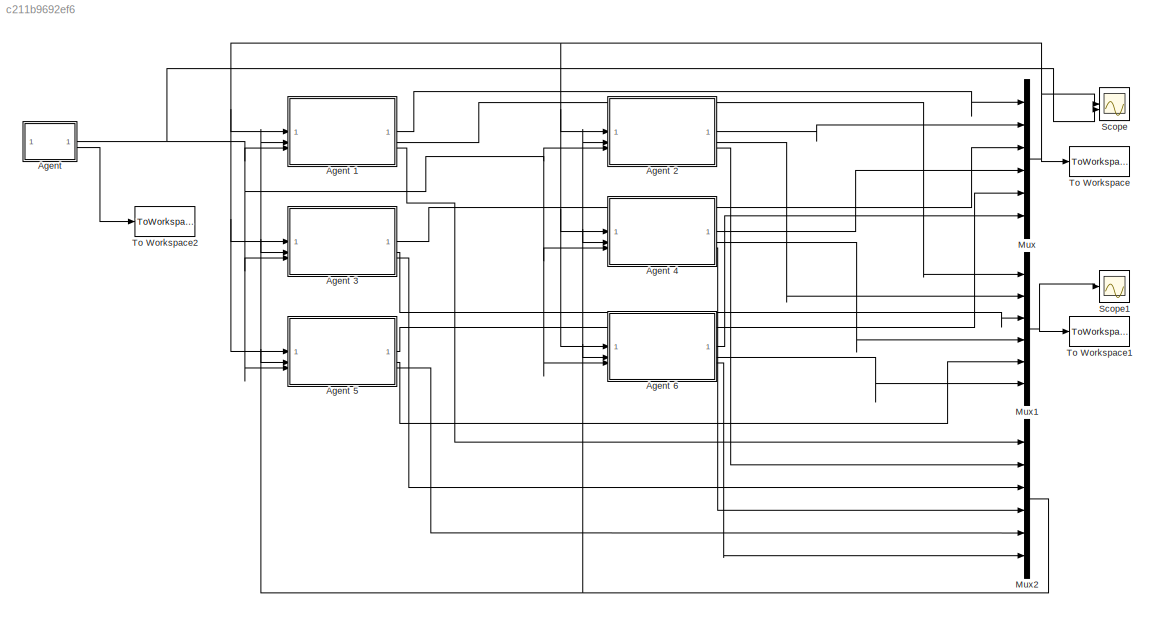
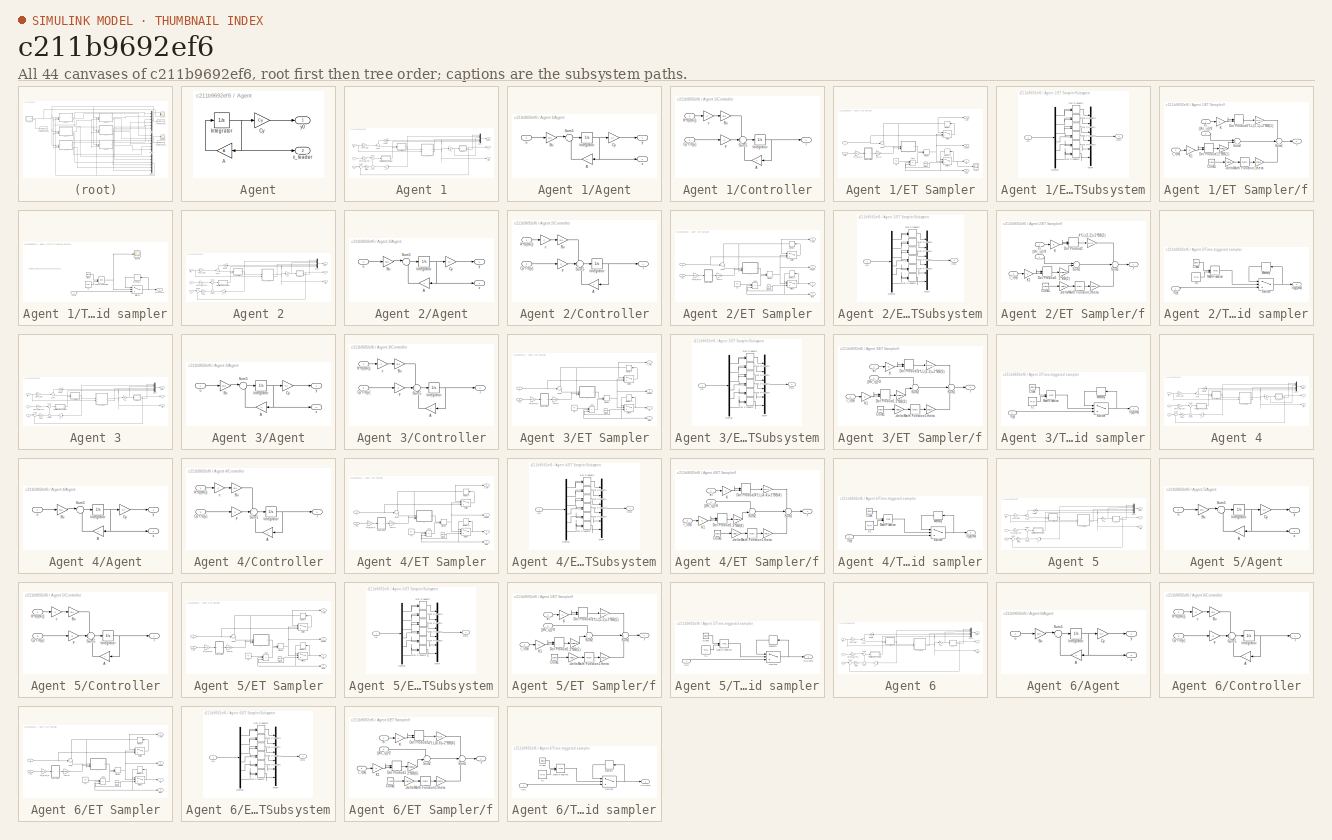
[diagram: thumbnail index - all 44 canvases of the model, root first then tree order]
MODEL slx_c211b9692ef6
KIND model
CONFIG AbsTol = auto
CONFIG EnableMultiTasking = on
CONFIG FixedStep = 0.0001
CONFIG MaxStep = auto
CONFIG MinStep = auto
CONFIG RelTol = 1e-3
CONFIG SampleTimeConstraint = Unconstrained
CONFIG SolverName = ode4
CONFIG StartTime = 0.0
CONFIG StopTime = 30
BLOCK [SubSystem] Agent
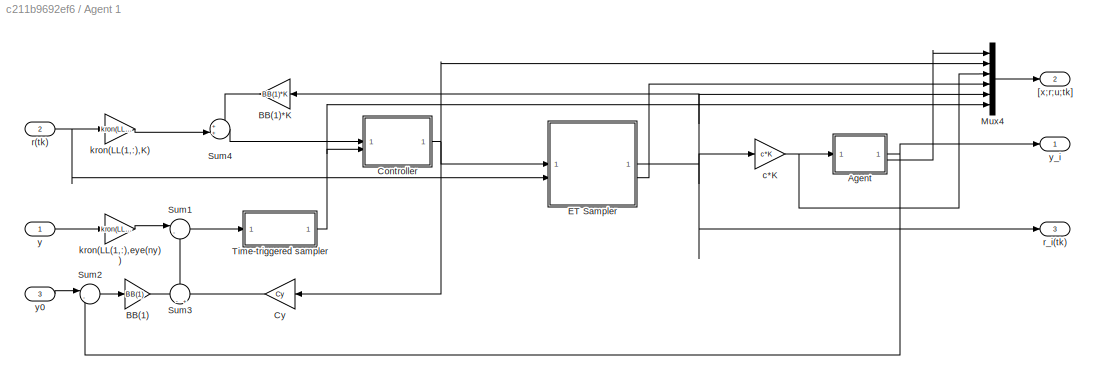
BLOCK [SubSystem] Agent 1
BLOCK [SubSystem] Agent 1/Agent
BLOCK [Gain] Agent 1/Agent/A
  Gain = A
  Multiplication = Matrix(K*u)
BLOCK [Gain] Agent 1/Agent/Bu
  Gain = Bu
  Multiplication = Matrix(K*u)
BLOCK [Gain] Agent 1/Agent/Cy
  Gain = Cy
  Multiplication = Matrix(K*u)
BLOCK [Integrator] Agent 1/Agent/Integrator
  ContinuousStateAttributes = 'x1'
  InitialCondition = x0(1:nx)
BLOCK [Sum] Agent 1/Agent/Sum5
  Inputs = |++
BLOCK [Inport] Agent 1/Agent/u
BLOCK [Outport] Agent 1/Agent/x
  Port = 2
BLOCK [Outport] Agent 1/Agent/y
BLOCK [Gain] Agent 1/BB(1)
  Gain = BB(1)
  Multiplication = Matrix(K*u)
BLOCK [Gain] Agent 1/BB(1)*K
  Gain = BB(1)*K
  Multiplication = Matrix(K*u)
BLOCK [SubSystem] Agent 1/Controller
BLOCK [Gain] Agent 1/Controller/A
  Gain = A
  Multiplication = Matrix(K*u)
BLOCK [Gain] Agent 1/Controller/Bu
  Gain = Bu
  Multiplication = Matrix(K*u)
BLOCK [Inport] Agent 1/Controller/Cy*r-\t{y}
  Port = 2
BLOCK [Gain] Agent 1/Controller/F
  Gain = F
  Multiplication = Matrix(K*u)
BLOCK [Integrator] Agent 1/Controller/Integrator
  ContinuousStateAttributes = 'r1'
  InitialCondition = zeros(nr,1)
BLOCK [Inport] Agent 1/Controller/K*\t{r(tk)}
BLOCK [Sum] Agent 1/Controller/Sum5
  Inputs = +++
BLOCK [Gain] Agent 1/Controller/c
  Gain = c
  Multiplication = Matrix(K*u)
BLOCK [Outport] Agent 1/Controller/r
BLOCK [Gain] Agent 1/Cy
  Gain = Cy
  Multiplication = Matrix(K*u)
BLOCK [SubSystem] Agent 1/ET Sampler
BLOCK [Gain] Agent 1/ET Sampler/ADJ(1,:)
  Gain = ADJ(1,:)
  Multiplication = Matrix(K*u)
BLOCK [Sum] Agent 1/ET Sampler/Add1
  IconShape = rectangular
  Inputs = ++-
BLOCK [Clock] Agent 1/ET Sampler/Clock
BLOCK [Gain] Agent 1/ET Sampler/Kri_m_Krj_1
  Gain = Kri_m_Krj_1
  Multiplication = Matrix(K*u)
BLOCK [Memory] Agent 1/ET Sampler/Memory
  InitialCondition = zeros(nr,1)
  StateName = tilde_x
BLOCK [Memory] Agent 1/ET Sampler/Memory1
  StateName = tilde_x
BLOCK [MinMax] Agent 1/ET Sampler/MinMax
  Inputs = 2
BLOCK [Scope] Agent 1/ET Sampler/Scope
  Floating = off
  NumInputPorts = 1
  ScopeSpecificationString = Simulink.scopes.TimeScopeBlockCfg('CurrentConfiguration', extmgr.ConfigurationSet(extmgr.Configuration('Core','General UI',true),extmgr.Configuration('Core','Source UI',true),extmgr.Configuration('Sources','WiredSimulink',true,'DataLoggingVariableName','ScopeData1'),extmgr.Configuration('Visuals','Time Domain',true,'SerializedDisplays',{struct('MinYLimReal','3.82548','MaxYLimReal','4.95114','YLabe...<+1450ch>
BLOCK [SubSystem] Agent 1/ET Sampler/Subsystem
BLOCK [Demux] Agent 1/ET Sampler/Subsystem/Demux
  Outputs = 6
BLOCK [DotProduct] Agent 1/ET Sampler/Subsystem/Dot Product1
  OutDataTypeStr = Inherit: Inherit via internal rule
BLOCK [DotProduct] Agent 1/ET Sampler/Subsystem/Dot Product2
  OutDataTypeStr = Inherit: Inherit via internal rule
BLOCK [DotProduct] Agent 1/ET Sampler/Subsystem/Dot Product3
  OutDataTypeStr = Inherit: Inherit via internal rule
BLOCK [DotProduct] Agent 1/ET Sampler/Subsystem/Dot Product4
  OutDataTypeStr = Inherit: Inherit via internal rule
BLOCK [DotProduct] Agent 1/ET Sampler/Subsystem/Dot Product5
  OutDataTypeStr = Inherit: Inherit via internal rule
BLOCK [DotProduct] Agent 1/ET Sampler/Subsystem/Dot Product6
  OutDataTypeStr = Inherit: Inherit via internal rule
BLOCK [Inport] Agent 1/ET Sampler/Subsystem/In1
BLOCK [Mux] Agent 1/ET Sampler/Subsystem/Mux4
  DisplayOption = bar
  Inputs = 6
BLOCK [Outport] Agent 1/ET Sampler/Subsystem/Out1
BLOCK [Sum] Agent 1/ET Sampler/Sum1
  Inputs = +-|
BLOCK [Switch] Agent 1/ET Sampler/Switch
  Criteria = u2 > Threshold
  InputSameDT = off
  SaturateOnIntegerOverflow = off
BLOCK [Switch] Agent 1/ET Sampler/Switch1
  Criteria = u2 > Threshold
  InputSameDT = off
  SaturateOnIntegerOverflow = off
BLOCK [Constant] Agent 1/ET Sampler/Th
  Value = Th
BLOCK [Outport] Agent 1/ET Sampler/Trigger
  Port = 3
BLOCK [SubSystem] Agent 1/ET Sampler/f
BLOCK [Gain] Agent 1/ET Sampler/f/-delta
  Gain = -delta
BLOCK [Gain] Agent 1/ET Sampler/f/2*BB(1)
  Gain = 2*BB(1)
  Multiplication = Matrix(K*u)
BLOCK [Gain] Agent 1/ET Sampler/f/4*LL(1,1)+2*BB(1)
  Gain = 4*LL(1,1)+2*BB(1)
  Multiplication = Matrix(K*u)
BLOCK [Clock] Agent 1/ET Sampler/f/Clock1
BLOCK [DotProduct] Agent 1/ET Sampler/f/Dot Product1
  OutDataTypeStr = Inherit: Inherit via internal rule
BLOCK [DotProduct] Agent 1/ET Sampler/f/Dot Product2
  OutDataTypeStr = Inherit: Inherit via internal rule
BLOCK [Gain] Agent 1/ET Sampler/f/K
  Gain = K
  Multiplication = Matrix(K*u)
BLOCK [Gain] Agent 1/ET Sampler/f/K1
  Gain = K
  Multiplication = Matrix(K*u)
BLOCK [Math] Agent 1/ET Sampler/f/Math Function1
  SignedPower = on
BLOCK [Sum] Agent 1/ET Sampler/f/Sum1
  Inputs = -++
BLOCK [Sum] Agent 1/ET Sampler/f/Sum2
  Inputs = +|+
BLOCK [Inport] Agent 1/ET Sampler/f/ei
BLOCK [Outport] Agent 1/ET Sampler/f/f
BLOCK [Inport] Agent 1/ET Sampler/f/r_i(tk)
  Port = 3
BLOCK [Gain] Agent 1/ET Sampler/f/theta
  Gain = theta
BLOCK [Inport] Agent 1/ET Sampler/f/||Kr_ij||^2
  Port = 2
BLOCK [Inport] Agent 1/ET Sampler/r
BLOCK [Inport] Agent 1/ET Sampler/r(tk)
  Port = 2
BLOCK [Outport] Agent 1/ET Sampler/r_i(tk)
BLOCK [Outport] Agent 1/ET Sampler/tk
  Port = 2
BLOCK [Outport] Agent 1/ET Sampler/tkm1
  Port = 4
BLOCK [Mux] Agent 1/Mux4
  DisplayOption = bar
  Inputs = 6
BLOCK [Sum] Agent 1/Sum1
  Inputs = |-+
BLOCK [Sum] Agent 1/Sum2
  Inputs = |-+
BLOCK [Sum] Agent 1/Sum3
  Inputs = -|+
  NameLocation = right
BLOCK [Sum] Agent 1/Sum4
  Inputs = ++|
BLOCK [SubSystem] Agent 1/Time-triggered sampler
BLOCK [Clock] Agent 1/Time-triggered sampler/Clock
BLOCK [Math] Agent 1/Time-triggered sampler/Math Function
  Operator = mod
BLOCK [Memory] Agent 1/Time-triggered sampler/Memory
  InitialCondition = ty0_1
  StateName = tilde_x
BLOCK [Scope] Agent 1/Time-triggered sampler/Scope
  Floating = off
  NumInputPorts = 1
  ScopeSpecificationString = Simulink.scopes.TimeScopeBlockCfg('CurrentConfiguration', extmgr.ConfigurationSet(extmgr.Configuration('Core','General UI',true),extmgr.Configuration('Core','Source UI',true),extmgr.Configuration('Sources','WiredSimulink',true,'DataLoggingVariableName','ScopeData4'),extmgr.Configuration('Visuals','Time Domain',true,'SerializedDisplays',{struct('MinYLimReal','-1.00000','MaxYLimReal','1.00000','YLab...<+1471ch>
BLOCK [Switch] Agent 1/Time-triggered sampler/Switch
  Criteria = u2 > Threshold
  InputSameDT = off
  SaturateOnIntegerOverflow = off
BLOCK [Constant] Agent 1/Time-triggered sampler/Tc
  Value = Tc(1)
BLOCK [Inport] Agent 1/Time-triggered sampler/\t{y}
BLOCK [Outport] Agent 1/Time-triggered sampler/\t{y}(ctk)
BLOCK [Outport] Agent 1/[x;r;u;tk]
  Port = 2
BLOCK [Gain] Agent 1/c*K
  Gain = c*K
  Multiplication = Matrix(K*u)
BLOCK [Gain] Agent 1/kron(LL(1,:),K)
  Gain = kron(LL(1,:),K)
  Multiplication = Matrix(K*u)
BLOCK [Gain] Agent 1/kron(LL(1,:),eye(ny))
  Gain = kron(LL(1,:),eye(ny))
  Multiplication = Matrix(K*u)
BLOCK [Inport] Agent 1/r(tk)
  Port = 2
BLOCK [Outport] Agent 1/r_i(tk)
  Port = 3
BLOCK [Inport] Agent 1/y
BLOCK [Inport] Agent 1/y0
  Port = 3
BLOCK [Outport] Agent 1/y_i
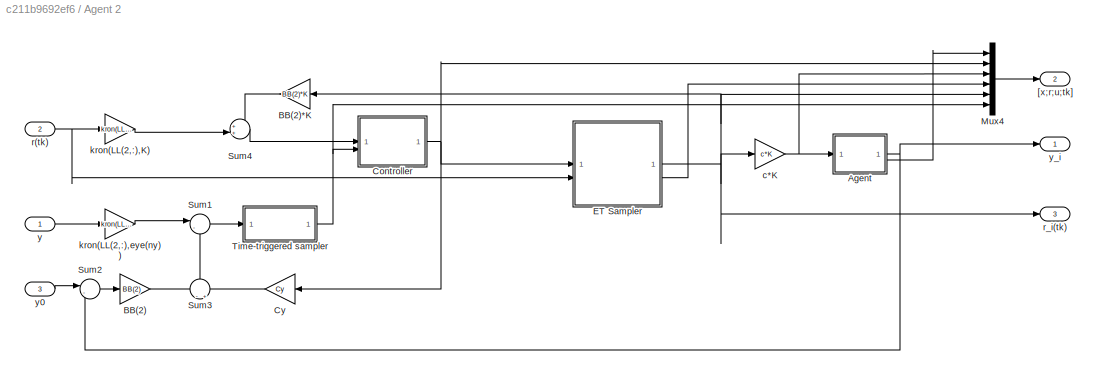
BLOCK [SubSystem] Agent 2
BLOCK [SubSystem] Agent 2/Agent
BLOCK [Gain] Agent 2/Agent/A
  Gain = A
  Multiplication = Matrix(K*u)
BLOCK [Gain] Agent 2/Agent/Bu
  Gain = Bu
  Multiplication = Matrix(K*u)
BLOCK [Gain] Agent 2/Agent/Cy
  Gain = Cy
  Multiplication = Matrix(K*u)
BLOCK [Integrator] Agent 2/Agent/Integrator
  ContinuousStateAttributes = 'x1'
  InitialCondition = x0(nx+1:2*nx)
BLOCK [Sum] Agent 2/Agent/Sum5
  Inputs = |++
BLOCK [Inport] Agent 2/Agent/u
BLOCK [Outport] Agent 2/Agent/x
  Port = 2
BLOCK [Outport] Agent 2/Agent/y
BLOCK [Gain] Agent 2/BB(2)
  Gain = BB(2)
  Multiplication = Matrix(K*u)
BLOCK [Gain] Agent 2/BB(2)*K
  Gain = BB(2)*K
  Multiplication = Matrix(K*u)
BLOCK [SubSystem] Agent 2/Controller
BLOCK [Gain] Agent 2/Controller/A
  Gain = A
  Multiplication = Matrix(K*u)
BLOCK [Gain] Agent 2/Controller/Bu
  Gain = Bu
  Multiplication = Matrix(K*u)
BLOCK [Inport] Agent 2/Controller/Cy*r-\t{y}
  Port = 2
BLOCK [Gain] Agent 2/Controller/F
  Gain = F
  Multiplication = Matrix(K*u)
BLOCK [Integrator] Agent 2/Controller/Integrator
  ContinuousStateAttributes = 'r1'
  InitialCondition = zeros(nr,1)
BLOCK [Inport] Agent 2/Controller/K*\t{r(tk)}
BLOCK [Sum] Agent 2/Controller/Sum5
  Inputs = +++
BLOCK [Gain] Agent 2/Controller/c
  Gain = c
  Multiplication = Matrix(K*u)
BLOCK [Outport] Agent 2/Controller/r
BLOCK [Gain] Agent 2/Cy
  Gain = Cy
  Multiplication = Matrix(K*u)
BLOCK [SubSystem] Agent 2/ET Sampler
BLOCK [Gain] Agent 2/ET Sampler/ADJ(2,:)
  Gain = ADJ(2,:)
  Multiplication = Matrix(K*u)
BLOCK [Sum] Agent 2/ET Sampler/Add1
  IconShape = rectangular
  Inputs = ++-
BLOCK [Clock] Agent 2/ET Sampler/Clock1
BLOCK [Gain] Agent 2/ET Sampler/Kri_m_Krj_2
  Gain = Kri_m_Krj_2
  Multiplication = Matrix(K*u)
BLOCK [Memory] Agent 2/ET Sampler/Memory
  InitialCondition = zeros(nr,1)
  StateName = tilde_x
BLOCK [Memory] Agent 2/ET Sampler/Memory1
  StateName = tilde_x
BLOCK [MinMax] Agent 2/ET Sampler/MinMax
  Inputs = 2
BLOCK [SubSystem] Agent 2/ET Sampler/Subsystem
BLOCK [Demux] Agent 2/ET Sampler/Subsystem/Demux
  Outputs = 6
BLOCK [DotProduct] Agent 2/ET Sampler/Subsystem/Dot Product1
  OutDataTypeStr = Inherit: Inherit via internal rule
BLOCK [DotProduct] Agent 2/ET Sampler/Subsystem/Dot Product2
  OutDataTypeStr = Inherit: Inherit via internal rule
BLOCK [DotProduct] Agent 2/ET Sampler/Subsystem/Dot Product3
  OutDataTypeStr = Inherit: Inherit via internal rule
BLOCK [DotProduct] Agent 2/ET Sampler/Subsystem/Dot Product4
  OutDataTypeStr = Inherit: Inherit via internal rule
BLOCK [DotProduct] Agent 2/ET Sampler/Subsystem/Dot Product5
  OutDataTypeStr = Inherit: Inherit via internal rule
BLOCK [DotProduct] Agent 2/ET Sampler/Subsystem/Dot Product6
  OutDataTypeStr = Inherit: Inherit via internal rule
BLOCK [Inport] Agent 2/ET Sampler/Subsystem/In1
BLOCK [Mux] Agent 2/ET Sampler/Subsystem/Mux4
  DisplayOption = bar
  Inputs = 6
BLOCK [Outport] Agent 2/ET Sampler/Subsystem/Out1
BLOCK [Sum] Agent 2/ET Sampler/Sum1
  Inputs = +-|
BLOCK [Switch] Agent 2/ET Sampler/Switch
  Criteria = u2 > Threshold
  InputSameDT = off
  SaturateOnIntegerOverflow = off
BLOCK [Switch] Agent 2/ET Sampler/Switch1
  Criteria = u2 > Threshold
  InputSameDT = off
  SaturateOnIntegerOverflow = off
BLOCK [Constant] Agent 2/ET Sampler/Th
  Value = Th
BLOCK [Outport] Agent 2/ET Sampler/Trigger
  Port = 3
BLOCK [SubSystem] Agent 2/ET Sampler/f
BLOCK [Gain] Agent 2/ET Sampler/f/-delta
  Gain = -delta
BLOCK [Gain] Agent 2/ET Sampler/f/2*BB(2)
  Gain = 2*BB(2)
  Multiplication = Matrix(K*u)
BLOCK [Gain] Agent 2/ET Sampler/f/4*LL(2,2)+2*BB(2)
  Gain = 4*LL(2,2)+2*BB(2)
  Multiplication = Matrix(K*u)
BLOCK [Clock] Agent 2/ET Sampler/f/Clock1
BLOCK [DotProduct] Agent 2/ET Sampler/f/Dot Product1
  OutDataTypeStr = Inherit: Inherit via internal rule
BLOCK [DotProduct] Agent 2/ET Sampler/f/Dot Product2
  OutDataTypeStr = Inherit: Inherit via internal rule
BLOCK [Gain] Agent 2/ET Sampler/f/K
  Gain = K
  Multiplication = Matrix(K*u)
BLOCK [Gain] Agent 2/ET Sampler/f/K1
  Gain = K
  Multiplication = Matrix(K*u)
BLOCK [Math] Agent 2/ET Sampler/f/Math Function1
  SignedPower = on
BLOCK [Sum] Agent 2/ET Sampler/f/Sum1
  Inputs = -++
BLOCK [Sum] Agent 2/ET Sampler/f/Sum2
  Inputs = +|+
BLOCK [Inport] Agent 2/ET Sampler/f/ei
BLOCK [Outport] Agent 2/ET Sampler/f/f
BLOCK [Inport] Agent 2/ET Sampler/f/r_i(tk)
  Port = 3
BLOCK [Gain] Agent 2/ET Sampler/f/theta
  Gain = theta
BLOCK [Inport] Agent 2/ET Sampler/f/||Kr_ij||^2
  Port = 2
BLOCK [Inport] Agent 2/ET Sampler/r
BLOCK [Inport] Agent 2/ET Sampler/r(tk)
  Port = 2
BLOCK [Outport] Agent 2/ET Sampler/r_i(tk)
BLOCK [Outport] Agent 2/ET Sampler/tk
  Port = 2
BLOCK [Outport] Agent 2/ET Sampler/tkm1
  Port = 4
BLOCK [Mux] Agent 2/Mux4
  DisplayOption = bar
  Inputs = 6
BLOCK [Sum] Agent 2/Sum1
  Inputs = |-+
BLOCK [Sum] Agent 2/Sum2
  Inputs = |-+
BLOCK [Sum] Agent 2/Sum3
  Inputs = -|+
  NameLocation = right
BLOCK [Sum] Agent 2/Sum4
  Inputs = ++|
BLOCK [SubSystem] Agent 2/Time-triggered sampler
BLOCK [Clock] Agent 2/Time-triggered sampler/Clock
BLOCK [Math] Agent 2/Time-triggered sampler/Math Function
  Operator = mod
BLOCK [Memory] Agent 2/Time-triggered sampler/Memory
  InitialCondition = ty0_2
  StateName = tilde_x
BLOCK [Switch] Agent 2/Time-triggered sampler/Switch
  Criteria = u2 > Threshold
  InputSameDT = off
  SaturateOnIntegerOverflow = off
BLOCK [Constant] Agent 2/Time-triggered sampler/Tc
  Value = Tc(2)
BLOCK [Inport] Agent 2/Time-triggered sampler/\t{y}
BLOCK [Outport] Agent 2/Time-triggered sampler/\t{y}(ctk)
BLOCK [Outport] Agent 2/[x;r;u;tk]
  Port = 2
BLOCK [Gain] Agent 2/c*K
  Gain = c*K
  Multiplication = Matrix(K*u)
BLOCK [Gain] Agent 2/kron(LL(2,:),K)
  Gain = kron(LL(2,:),K)
  Multiplication = Matrix(K*u)
BLOCK [Gain] Agent 2/kron(LL(2,:),eye(ny))
  Gain = kron(LL(2,:),eye(ny))
  Multiplication = Matrix(K*u)
BLOCK [Inport] Agent 2/r(tk)
  Port = 2
BLOCK [Outport] Agent 2/r_i(tk)
  Port = 3
BLOCK [Inport] Agent 2/y
BLOCK [Inport] Agent 2/y0
  Port = 3
BLOCK [Outport] Agent 2/y_i
BLOCK [SubSystem] Agent 3
BLOCK [SubSystem] Agent 3/Agent
BLOCK [Gain] Agent 3/Agent/A
  Gain = A
  Multiplication = Matrix(K*u)
BLOCK [Gain] Agent 3/Agent/Bu
  Gain = Bu
  Multiplication = Matrix(K*u)
BLOCK [Gain] Agent 3/Agent/Cy
  Gain = Cy
  Multiplication = Matrix(K*u)
BLOCK [Integrator] Agent 3/Agent/Integrator
  ContinuousStateAttributes = 'x1'
  InitialCondition = x0(2*nx+1:3*nx)
BLOCK [Sum] Agent 3/Agent/Sum5
  Inputs = |++
BLOCK [Inport] Agent 3/Agent/u
BLOCK [Outport] Agent 3/Agent/x
  Port = 2
BLOCK [Outport] Agent 3/Agent/y
BLOCK [Gain] Agent 3/BB(3)
  Gain = BB(3)
  Multiplication = Matrix(K*u)
BLOCK [Gain] Agent 3/BB(3)*K
  Gain = BB(3)*K
  Multiplication = Matrix(K*u)
BLOCK [SubSystem] Agent 3/Controller
BLOCK [Gain] Agent 3/Controller/A
  Gain = A
  Multiplication = Matrix(K*u)
BLOCK [Gain] Agent 3/Controller/Bu
  Gain = Bu
  Multiplication = Matrix(K*u)
BLOCK [Inport] Agent 3/Controller/Cy*r-\t{y}
  Port = 2
BLOCK [Gain] Agent 3/Controller/F
  Gain = F
  Multiplication = Matrix(K*u)
BLOCK [Integrator] Agent 3/Controller/Integrator
  ContinuousStateAttributes = 'r1'
  InitialCondition = zeros(nr,1)
BLOCK [Inport] Agent 3/Controller/K*\t{r(tk)}
BLOCK [Sum] Agent 3/Controller/Sum5
  Inputs = +++
BLOCK [Gain] Agent 3/Controller/c
  Gain = c
  Multiplication = Matrix(K*u)
BLOCK [Outport] Agent 3/Controller/r
BLOCK [Gain] Agent 3/Cy
  Gain = Cy
  Multiplication = Matrix(K*u)
BLOCK [SubSystem] Agent 3/ET Sampler
BLOCK [Gain] Agent 3/ET Sampler/ADJ(3,:)
  Gain = ADJ(3,:)
  Multiplication = Matrix(K*u)
BLOCK [Sum] Agent 3/ET Sampler/Add1
  IconShape = rectangular
  Inputs = ++-
BLOCK [Clock] Agent 3/ET Sampler/Clock
BLOCK [Gain] Agent 3/ET Sampler/Kri_m_Krj_3
  Gain = Kri_m_Krj_3
  Multiplication = Matrix(K*u)
BLOCK [Memory] Agent 3/ET Sampler/Memory
  InitialCondition = zeros(nr,1)
  StateName = tilde_x
BLOCK [Memory] Agent 3/ET Sampler/Memory1
  StateName = tilde_x
BLOCK [MinMax] Agent 3/ET Sampler/MinMax
  Inputs = 2
BLOCK [SubSystem] Agent 3/ET Sampler/Subsystem
BLOCK [Demux] Agent 3/ET Sampler/Subsystem/Demux
  Outputs = 6
BLOCK [DotProduct] Agent 3/ET Sampler/Subsystem/Dot Product1
  OutDataTypeStr = Inherit: Inherit via internal rule
BLOCK [DotProduct] Agent 3/ET Sampler/Subsystem/Dot Product2
  OutDataTypeStr = Inherit: Inherit via internal rule
BLOCK [DotProduct] Agent 3/ET Sampler/Subsystem/Dot Product3
  OutDataTypeStr = Inherit: Inherit via internal rule
BLOCK [DotProduct] Agent 3/ET Sampler/Subsystem/Dot Product4
  OutDataTypeStr = Inherit: Inherit via internal rule
BLOCK [DotProduct] Agent 3/ET Sampler/Subsystem/Dot Product5
  OutDataTypeStr = Inherit: Inherit via internal rule
BLOCK [DotProduct] Agent 3/ET Sampler/Subsystem/Dot Product6
  OutDataTypeStr = Inherit: Inherit via internal rule
BLOCK [Inport] Agent 3/ET Sampler/Subsystem/In1
BLOCK [Mux] Agent 3/ET Sampler/Subsystem/Mux4
  DisplayOption = bar
  Inputs = 6
BLOCK [Outport] Agent 3/ET Sampler/Subsystem/Out1
BLOCK [Sum] Agent 3/ET Sampler/Sum1
  Inputs = +-|
BLOCK [Switch] Agent 3/ET Sampler/Switch
  Criteria = u2 > Threshold
  InputSameDT = off
  SaturateOnIntegerOverflow = off
BLOCK [Switch] Agent 3/ET Sampler/Switch1
  Criteria = u2 > Threshold
  InputSameDT = off
  SaturateOnIntegerOverflow = off
BLOCK [Constant] Agent 3/ET Sampler/Th
  Value = Th
BLOCK [Outport] Agent 3/ET Sampler/Trigger
  Port = 3
BLOCK [SubSystem] Agent 3/ET Sampler/f
BLOCK [Gain] Agent 3/ET Sampler/f/-delta
  Gain = -delta
BLOCK [Gain] Agent 3/ET Sampler/f/2*BB(3)
  Gain = 2*BB(3)
  Multiplication = Matrix(K*u)
BLOCK [Gain] Agent 3/ET Sampler/f/4*LL(3,3)+2*BB(3)
  Gain = 4*LL(3,3)+2*BB(3)
  Multiplication = Matrix(K*u)
BLOCK [Clock] Agent 3/ET Sampler/f/Clock1
BLOCK [DotProduct] Agent 3/ET Sampler/f/Dot Product1
  OutDataTypeStr = Inherit: Inherit via internal rule
BLOCK [DotProduct] Agent 3/ET Sampler/f/Dot Product2
  OutDataTypeStr = Inherit: Inherit via internal rule
BLOCK [Gain] Agent 3/ET Sampler/f/K
  Gain = K
  Multiplication = Matrix(K*u)
BLOCK [Gain] Agent 3/ET Sampler/f/K1
  Gain = K
  Multiplication = Matrix(K*u)
BLOCK [Math] Agent 3/ET Sampler/f/Math Function1
  SignedPower = on
BLOCK [Sum] Agent 3/ET Sampler/f/Sum1
  Inputs = -++
BLOCK [Sum] Agent 3/ET Sampler/f/Sum2
  Inputs = +|+
BLOCK [Inport] Agent 3/ET Sampler/f/ei
BLOCK [Outport] Agent 3/ET Sampler/f/f
BLOCK [Inport] Agent 3/ET Sampler/f/r_i(tk)
  Port = 3
BLOCK [Gain] Agent 3/ET Sampler/f/theta
  Gain = theta
BLOCK [Inport] Agent 3/ET Sampler/f/||Kr_ij||^2
  Port = 2
BLOCK [Inport] Agent 3/ET Sampler/r
BLOCK [Inport] Agent 3/ET Sampler/r(tk)
  Port = 2
BLOCK [Outport] Agent 3/ET Sampler/r_i(tk)
BLOCK [Outport] Agent 3/ET Sampler/tk
  Port = 2
BLOCK [Outport] Agent 3/ET Sampler/tkm1
  Port = 4
BLOCK [Mux] Agent 3/Mux4
  DisplayOption = bar
  Inputs = 6
BLOCK [Sum] Agent 3/Sum1
  Inputs = |-+
BLOCK [Sum] Agent 3/Sum2
  Inputs = |-+
BLOCK [Sum] Agent 3/Sum3
  Inputs = -|+
  NameLocation = right
BLOCK [Sum] Agent 3/Sum4
  Inputs = ++|
BLOCK [SubSystem] Agent 3/Time-triggered sampler
BLOCK [Clock] Agent 3/Time-triggered sampler/Clock
BLOCK [Math] Agent 3/Time-triggered sampler/Math Function
  Operator = mod
BLOCK [Memory] Agent 3/Time-triggered sampler/Memory
  InitialCondition = ty0_3
  StateName = tilde_x
BLOCK [Switch] Agent 3/Time-triggered sampler/Switch
  Criteria = u2 > Threshold
  InputSameDT = off
  SaturateOnIntegerOverflow = off
BLOCK [Constant] Agent 3/Time-triggered sampler/Tc
  Value = Tc(3)
BLOCK [Inport] Agent 3/Time-triggered sampler/\t{y}
BLOCK [Outport] Agent 3/Time-triggered sampler/\t{y}(ctk)
BLOCK [Outport] Agent 3/[x;r;u;tk]
  Port = 2
BLOCK [Gain] Agent 3/c*K
  Gain = c*K
  Multiplication = Matrix(K*u)
BLOCK [Gain] Agent 3/kron(LL(3,:),K)
  Gain = kron(LL(3,:),K)
  Multiplication = Matrix(K*u)
BLOCK [Gain] Agent 3/kron(LL(3,:),eye(ny))
  Gain = kron(LL(3,:),eye(ny))
  Multiplication = Matrix(K*u)
BLOCK [Inport] Agent 3/r(tk)
  Port = 2
BLOCK [Outport] Agent 3/r_i(tk)
  Port = 3
BLOCK [Inport] Agent 3/y
BLOCK [Inport] Agent 3/y0
  Port = 3
BLOCK [Outport] Agent 3/y_i
BLOCK [SubSystem] Agent 4
BLOCK [SubSystem] Agent 4/Agent
BLOCK [Gain] Agent 4/Agent/A
  Gain = A
  Multiplication = Matrix(K*u)
BLOCK [Gain] Agent 4/Agent/Bu
  Gain = Bu
  Multiplication = Matrix(K*u)
BLOCK [Gain] Agent 4/Agent/Cy
  Gain = Cy
  Multiplication = Matrix(K*u)
BLOCK [Integrator] Agent 4/Agent/Integrator
  ContinuousStateAttributes = 'x1'
  InitialCondition = x0(3*nx+1:4*nx)
BLOCK [Sum] Agent 4/Agent/Sum5
  Inputs = |++
BLOCK [Inport] Agent 4/Agent/u
BLOCK [Outport] Agent 4/Agent/x
  Port = 2
BLOCK [Outport] Agent 4/Agent/y
BLOCK [Gain] Agent 4/BB(4)
  Gain = BB(4)
  Multiplication = Matrix(K*u)
BLOCK [Gain] Agent 4/BB(4)*K
  Gain = BB(4)*K
  Multiplication = Matrix(K*u)
BLOCK [SubSystem] Agent 4/Controller
BLOCK [Gain] Agent 4/Controller/A
  Gain = A
  Multiplication = Matrix(K*u)
BLOCK [Gain] Agent 4/Controller/Bu
  Gain = Bu
  Multiplication = Matrix(K*u)
BLOCK [Inport] Agent 4/Controller/Cy*r-\t{y}
  Port = 2
BLOCK [Gain] Agent 4/Controller/F
  Gain = F
  Multiplication = Matrix(K*u)
BLOCK [Integrator] Agent 4/Controller/Integrator
  ContinuousStateAttributes = 'r1'
  InitialCondition = zeros(nr,1)
BLOCK [Inport] Agent 4/Controller/K*\t{r(tk)}
BLOCK [Sum] Agent 4/Controller/Sum5
  Inputs = +++
BLOCK [Gain] Agent 4/Controller/c
  Gain = c
  Multiplication = Matrix(K*u)
BLOCK [Outport] Agent 4/Controller/r
BLOCK [Gain] Agent 4/Cy
  Gain = Cy
  Multiplication = Matrix(K*u)
BLOCK [SubSystem] Agent 4/ET Sampler
BLOCK [Gain] Agent 4/ET Sampler/ADJ(4,:)
  Gain = ADJ(4,:)
  Multiplication = Matrix(K*u)
BLOCK [Sum] Agent 4/ET Sampler/Add1
  IconShape = rectangular
  Inputs = ++-
BLOCK [Clock] Agent 4/ET Sampler/Clock
BLOCK [Gain] Agent 4/ET Sampler/Kri_m_Krj_4
  Gain = Kri_m_Krj_4
  Multiplication = Matrix(K*u)
BLOCK [Memory] Agent 4/ET Sampler/Memory
  InitialCondition = zeros(nr,1)
  StateName = tilde_x
BLOCK [Memory] Agent 4/ET Sampler/Memory1
  StateName = tilde_x
BLOCK [MinMax] Agent 4/ET Sampler/MinMax
  Inputs = 2
BLOCK [SubSystem] Agent 4/ET Sampler/Subsystem
BLOCK [Demux] Agent 4/ET Sampler/Subsystem/Demux
  Outputs = 6
BLOCK [DotProduct] Agent 4/ET Sampler/Subsystem/Dot Product1
  OutDataTypeStr = Inherit: Inherit via internal rule
BLOCK [DotProduct] Agent 4/ET Sampler/Subsystem/Dot Product2
  OutDataTypeStr = Inherit: Inherit via internal rule
BLOCK [DotProduct] Agent 4/ET Sampler/Subsystem/Dot Product3
  OutDataTypeStr = Inherit: Inherit via internal rule
BLOCK [DotProduct] Agent 4/ET Sampler/Subsystem/Dot Product4
  OutDataTypeStr = Inherit: Inherit via internal rule
BLOCK [DotProduct] Agent 4/ET Sampler/Subsystem/Dot Product5
  OutDataTypeStr = Inherit: Inherit via internal rule
BLOCK [DotProduct] Agent 4/ET Sampler/Subsystem/Dot Product6
  OutDataTypeStr = Inherit: Inherit via internal rule
BLOCK [Inport] Agent 4/ET Sampler/Subsystem/In1
BLOCK [Mux] Agent 4/ET Sampler/Subsystem/Mux4
  DisplayOption = bar
  Inputs = 6
BLOCK [Outport] Agent 4/ET Sampler/Subsystem/Out1
BLOCK [Sum] Agent 4/ET Sampler/Sum1
  Inputs = +-|
BLOCK [Switch] Agent 4/ET Sampler/Switch
  Criteria = u2 > Threshold
  InputSameDT = off
  SaturateOnIntegerOverflow = off
BLOCK [Switch] Agent 4/ET Sampler/Switch1
  Criteria = u2 > Threshold
  InputSameDT = off
  SaturateOnIntegerOverflow = off
BLOCK [Constant] Agent 4/ET Sampler/Th
  Value = Th
BLOCK [Outport] Agent 4/ET Sampler/Trigger
  Port = 3
BLOCK [SubSystem] Agent 4/ET Sampler/f
BLOCK [Gain] Agent 4/ET Sampler/f/-delta
  Gain = -delta
BLOCK [Gain] Agent 4/ET Sampler/f/2*BB(4)
  Gain = 2*BB(4)
  Multiplication = Matrix(K*u)
BLOCK [Gain] Agent 4/ET Sampler/f/4*LL(4,4)+2*BB(4)
  Gain = 4*LL(4,4)+2*BB(4)
  Multiplication = Matrix(K*u)
BLOCK [Clock] Agent 4/ET Sampler/f/Clock1
BLOCK [DotProduct] Agent 4/ET Sampler/f/Dot Product1
  OutDataTypeStr = Inherit: Inherit via internal rule
BLOCK [DotProduct] Agent 4/ET Sampler/f/Dot Product2
  OutDataTypeStr = Inherit: Inherit via internal rule
BLOCK [Gain] Agent 4/ET Sampler/f/K
  Gain = K
  Multiplication = Matrix(K*u)
BLOCK [Gain] Agent 4/ET Sampler/f/K1
  Gain = K
  Multiplication = Matrix(K*u)
BLOCK [Math] Agent 4/ET Sampler/f/Math Function1
  SignedPower = on
BLOCK [Sum] Agent 4/ET Sampler/f/Sum1
  Inputs = -++
BLOCK [Sum] Agent 4/ET Sampler/f/Sum2
  Inputs = +|+
BLOCK [Inport] Agent 4/ET Sampler/f/ei
BLOCK [Outport] Agent 4/ET Sampler/f/f
BLOCK [Inport] Agent 4/ET Sampler/f/r_i(tk)
  Port = 3
BLOCK [Gain] Agent 4/ET Sampler/f/theta
  Gain = theta
BLOCK [Inport] Agent 4/ET Sampler/f/||Kr_ij||^2
  Port = 2
BLOCK [Inport] Agent 4/ET Sampler/r
BLOCK [Inport] Agent 4/ET Sampler/r(tk)
  Port = 2
BLOCK [Outport] Agent 4/ET Sampler/r_i(tk)
BLOCK [Outport] Agent 4/ET Sampler/tk
  Port = 2
BLOCK [Outport] Agent 4/ET Sampler/tkm1
  Port = 4
BLOCK [Mux] Agent 4/Mux4
  DisplayOption = bar
  Inputs = 6
BLOCK [Sum] Agent 4/Sum1
  Inputs = |-+
BLOCK [Sum] Agent 4/Sum2
  Inputs = |-+
BLOCK [Sum] Agent 4/Sum3
  Inputs = -|+
  NameLocation = right
BLOCK [Sum] Agent 4/Sum4
  Inputs = ++|
BLOCK [SubSystem] Agent 4/Time-triggered sampler
BLOCK [Clock] Agent 4/Time-triggered sampler/Clock
BLOCK [Math] Agent 4/Time-triggered sampler/Math Function
  Operator = mod
BLOCK [Memory] Agent 4/Time-triggered sampler/Memory
  InitialCondition = ty0_4
  StateName = tilde_x
BLOCK [Switch] Agent 4/Time-triggered sampler/Switch
  Criteria = u2 > Threshold
  InputSameDT = off
  SaturateOnIntegerOverflow = off
BLOCK [Constant] Agent 4/Time-triggered sampler/Tc
  Value = Tc(4)
BLOCK [Inport] Agent 4/Time-triggered sampler/\t{y}
BLOCK [Outport] Agent 4/Time-triggered sampler/\t{y}(ctk)
BLOCK [Outport] Agent 4/[x;r;u;tk]
  Port = 2
BLOCK [Gain] Agent 4/c*K
  Gain = c*K
  Multiplication = Matrix(K*u)
BLOCK [Gain] Agent 4/kron(LL(4,:),K)
  Gain = kron(LL(4,:),K)
  Multiplication = Matrix(K*u)
BLOCK [Gain] Agent 4/kron(LL(4,:),eye(ny))
  Gain = kron(LL(4,:),eye(ny))
  Multiplication = Matrix(K*u)
BLOCK [Inport] Agent 4/r(tk)
  Port = 2
BLOCK [Outport] Agent 4/r_i(tk)
  Port = 3
BLOCK [Inport] Agent 4/y
BLOCK [Inport] Agent 4/y0
  Port = 3
BLOCK [Outport] Agent 4/y_i
BLOCK [SubSystem] Agent 5
BLOCK [SubSystem] Agent 5/Agent
BLOCK [Gain] Agent 5/Agent/A
  Gain = A
  Multiplication = Matrix(K*u)
BLOCK [Gain] Agent 5/Agent/Bu
  Gain = Bu
  Multiplication = Matrix(K*u)
BLOCK [Gain] Agent 5/Agent/Cy
  Gain = Cy
  Multiplication = Matrix(K*u)
BLOCK [Integrator] Agent 5/Agent/Integrator
  ContinuousStateAttributes = 'x1'
  InitialCondition = x0(4*nx+1:5*nx)
BLOCK [Sum] Agent 5/Agent/Sum5
  Inputs = |++
BLOCK [Inport] Agent 5/Agent/u
BLOCK [Outport] Agent 5/Agent/x
  Port = 2
BLOCK [Outport] Agent 5/Agent/y
BLOCK [Gain] Agent 5/BB(5)
  Gain = BB(5)
  Multiplication = Matrix(K*u)
BLOCK [Gain] Agent 5/BB(5)*K
  Gain = BB(5)*K
  Multiplication = Matrix(K*u)
BLOCK [SubSystem] Agent 5/Controller
BLOCK [Gain] Agent 5/Controller/A
  Gain = A
  Multiplication = Matrix(K*u)
BLOCK [Gain] Agent 5/Controller/Bu
  Gain = Bu
  Multiplication = Matrix(K*u)
BLOCK [Inport] Agent 5/Controller/Cy*r-\t{y}
  Port = 2
BLOCK [Gain] Agent 5/Controller/F
  Gain = F
  Multiplication = Matrix(K*u)
BLOCK [Integrator] Agent 5/Controller/Integrator
  ContinuousStateAttributes = 'r1'
  InitialCondition = zeros(nr,1)
BLOCK [Inport] Agent 5/Controller/K*\t{r(tk)}
BLOCK [Sum] Agent 5/Controller/Sum5
  Inputs = +++
BLOCK [Gain] Agent 5/Controller/c
  Gain = c
  Multiplication = Matrix(K*u)
BLOCK [Outport] Agent 5/Controller/r
BLOCK [Gain] Agent 5/Cy
  Gain = Cy
  Multiplication = Matrix(K*u)
BLOCK [SubSystem] Agent 5/ET Sampler
BLOCK [Gain] Agent 5/ET Sampler/ADJ(5,:)
  Gain = ADJ(5,:)
  Multiplication = Matrix(K*u)
BLOCK [Sum] Agent 5/ET Sampler/Add1
  IconShape = rectangular
  Inputs = ++-
BLOCK [Clock] Agent 5/ET Sampler/Clock
BLOCK [Gain] Agent 5/ET Sampler/Kri_m_Krj_5
  Gain = Kri_m_Krj_5
  Multiplication = Matrix(K*u)
BLOCK [Memory] Agent 5/ET Sampler/Memory
  InitialCondition = zeros(nr,1)
  StateName = tilde_x
BLOCK [Memory] Agent 5/ET Sampler/Memory1
  StateName = tilde_x
BLOCK [MinMax] Agent 5/ET Sampler/MinMax
  Inputs = 2
BLOCK [SubSystem] Agent 5/ET Sampler/Subsystem
BLOCK [Demux] Agent 5/ET Sampler/Subsystem/Demux
  Outputs = 6
BLOCK [DotProduct] Agent 5/ET Sampler/Subsystem/Dot Product1
  OutDataTypeStr = Inherit: Inherit via internal rule
BLOCK [DotProduct] Agent 5/ET Sampler/Subsystem/Dot Product2
  OutDataTypeStr = Inherit: Inherit via internal rule
BLOCK [DotProduct] Agent 5/ET Sampler/Subsystem/Dot Product3
  OutDataTypeStr = Inherit: Inherit via internal rule
BLOCK [DotProduct] Agent 5/ET Sampler/Subsystem/Dot Product4
  OutDataTypeStr = Inherit: Inherit via internal rule
BLOCK [DotProduct] Agent 5/ET Sampler/Subsystem/Dot Product5
  OutDataTypeStr = Inherit: Inherit via internal rule
BLOCK [DotProduct] Agent 5/ET Sampler/Subsystem/Dot Product6
  OutDataTypeStr = Inherit: Inherit via internal rule
BLOCK [Inport] Agent 5/ET Sampler/Subsystem/In1
BLOCK [Mux] Agent 5/ET Sampler/Subsystem/Mux4
  DisplayOption = bar
  Inputs = 6
BLOCK [Outport] Agent 5/ET Sampler/Subsystem/Out1
BLOCK [Sum] Agent 5/ET Sampler/Sum1
  Inputs = +-|
BLOCK [Switch] Agent 5/ET Sampler/Switch
  Criteria = u2 > Threshold
  InputSameDT = off
  SaturateOnIntegerOverflow = off
BLOCK [Switch] Agent 5/ET Sampler/Switch1
  Criteria = u2 > Threshold
  InputSameDT = off
  SaturateOnIntegerOverflow = off
BLOCK [Constant] Agent 5/ET Sampler/Th
  Value = Th
BLOCK [Outport] Agent 5/ET Sampler/Trigger
  Port = 3
BLOCK [SubSystem] Agent 5/ET Sampler/f
BLOCK [Gain] Agent 5/ET Sampler/f/-delta
  Gain = -delta
BLOCK [Gain] Agent 5/ET Sampler/f/2*BB(5)
  Gain = 2*BB(5)
  Multiplication = Matrix(K*u)
BLOCK [Gain] Agent 5/ET Sampler/f/4*LL(5,5)+2*BB(5)
  Gain = 4*LL(5,5)+2*BB(5)
  Multiplication = Matrix(K*u)
BLOCK [Clock] Agent 5/ET Sampler/f/Clock1
BLOCK [DotProduct] Agent 5/ET Sampler/f/Dot Product1
  OutDataTypeStr = Inherit: Inherit via internal rule
BLOCK [DotProduct] Agent 5/ET Sampler/f/Dot Product2
  OutDataTypeStr = Inherit: Inherit via internal rule
BLOCK [Gain] Agent 5/ET Sampler/f/K
  Gain = K
  Multiplication = Matrix(K*u)
BLOCK [Gain] Agent 5/ET Sampler/f/K1
  Gain = K
  Multiplication = Matrix(K*u)
BLOCK [Math] Agent 5/ET Sampler/f/Math Function1
  SignedPower = on
BLOCK [Sum] Agent 5/ET Sampler/f/Sum1
  Inputs = -++
BLOCK [Sum] Agent 5/ET Sampler/f/Sum2
  Inputs = +|+
BLOCK [Inport] Agent 5/ET Sampler/f/ei
BLOCK [Outport] Agent 5/ET Sampler/f/f
BLOCK [Inport] Agent 5/ET Sampler/f/r_i(tk)
  Port = 3
BLOCK [Gain] Agent 5/ET Sampler/f/theta
  Gain = theta
BLOCK [Inport] Agent 5/ET Sampler/f/||Kr_ij||^2
  Port = 2
BLOCK [Inport] Agent 5/ET Sampler/r
BLOCK [Inport] Agent 5/ET Sampler/r(tk)
  Port = 2
BLOCK [Outport] Agent 5/ET Sampler/r_i(tk)
BLOCK [Outport] Agent 5/ET Sampler/tk
  Port = 2
BLOCK [Outport] Agent 5/ET Sampler/tkm1
  Port = 4
BLOCK [Mux] Agent 5/Mux4
  DisplayOption = bar
  Inputs = 6
BLOCK [Sum] Agent 5/Sum1
  Inputs = |-+
BLOCK [Sum] Agent 5/Sum2
  Inputs = |-+
BLOCK [Sum] Agent 5/Sum3
  Inputs = -|+
  NameLocation = right
BLOCK [Sum] Agent 5/Sum4
  Inputs = ++|
BLOCK [SubSystem] Agent 5/Time-triggered sampler
BLOCK [Clock] Agent 5/Time-triggered sampler/Clock
BLOCK [Math] Agent 5/Time-triggered sampler/Math Function
  Operator = mod
BLOCK [Memory] Agent 5/Time-triggered sampler/Memory
  InitialCondition = ty0_5
  StateName = tilde_x
BLOCK [Switch] Agent 5/Time-triggered sampler/Switch
  Criteria = u2 > Threshold
  InputSameDT = off
  SaturateOnIntegerOverflow = off
BLOCK [Constant] Agent 5/Time-triggered sampler/Tc
  Value = Tc(5)
BLOCK [Inport] Agent 5/Time-triggered sampler/\t{y}
BLOCK [Outport] Agent 5/Time-triggered sampler/\t{y}(ctk)
BLOCK [Outport] Agent 5/[x;r;u;tk]
  Port = 2
BLOCK [Gain] Agent 5/c*K
  Gain = c*K
  Multiplication = Matrix(K*u)
BLOCK [Gain] Agent 5/kron(LL(5,:),K)
  Gain = kron(LL(5,:),K)
  Multiplication = Matrix(K*u)
BLOCK [Gain] Agent 5/kron(LL(5,:),eye(ny))
  Gain = kron(LL(5,:),eye(ny))
  Multiplication = Matrix(K*u)
BLOCK [Inport] Agent 5/r(tk)
  Port = 2
BLOCK [Outport] Agent 5/r_i(tk)
  Port = 3
BLOCK [Inport] Agent 5/y
BLOCK [Inport] Agent 5/y0
  Port = 3
BLOCK [Outport] Agent 5/y_i
BLOCK [SubSystem] Agent 6
BLOCK [SubSystem] Agent 6/Agent
BLOCK [Gain] Agent 6/Agent/A
  Gain = A
  Multiplication = Matrix(K*u)
BLOCK [Gain] Agent 6/Agent/Bu
  Gain = Bu
  Multiplication = Matrix(K*u)
BLOCK [Gain] Agent 6/Agent/Cy
  Gain = Cy
  Multiplication = Matrix(K*u)
BLOCK [Integrator] Agent 6/Agent/Integrator
  ContinuousStateAttributes = 'x1'
  InitialCondition = x0(5*nx+1:6*nx)
BLOCK [Sum] Agent 6/Agent/Sum5
  Inputs = |++
BLOCK [Inport] Agent 6/Agent/u
BLOCK [Outport] Agent 6/Agent/x
  Port = 2
BLOCK [Outport] Agent 6/Agent/y
BLOCK [Gain] Agent 6/BB(6)
  Gain = BB(6)
  Multiplication = Matrix(K*u)
BLOCK [Gain] Agent 6/BB(6)*K
  Gain = BB(6)*K
  Multiplication = Matrix(K*u)
BLOCK [SubSystem] Agent 6/Controller
BLOCK [Gain] Agent 6/Controller/A
  Gain = A
  Multiplication = Matrix(K*u)
BLOCK [Gain] Agent 6/Controller/Bu
  Gain = Bu
  Multiplication = Matrix(K*u)
BLOCK [Inport] Agent 6/Controller/Cy*r-\t{y}
  Port = 2
BLOCK [Gain] Agent 6/Controller/F
  Gain = F
  Multiplication = Matrix(K*u)
BLOCK [Integrator] Agent 6/Controller/Integrator
  ContinuousStateAttributes = 'r1'
  InitialCondition = zeros(nr,1)
BLOCK [Inport] Agent 6/Controller/K*\t{r(tk)}
BLOCK [Sum] Agent 6/Controller/Sum5
  Inputs = +++
BLOCK [Gain] Agent 6/Controller/c
  Gain = c
  Multiplication = Matrix(K*u)
BLOCK [Outport] Agent 6/Controller/r
BLOCK [Gain] Agent 6/Cy
  Gain = Cy
  Multiplication = Matrix(K*u)
BLOCK [SubSystem] Agent 6/ET Sampler
BLOCK [Gain] Agent 6/ET Sampler/ADJ(6,:)
  Gain = ADJ(6,:)
  Multiplication = Matrix(K*u)
BLOCK [Sum] Agent 6/ET Sampler/Add1
  IconShape = rectangular
  Inputs = ++-
BLOCK [Clock] Agent 6/ET Sampler/Clock
BLOCK [Gain] Agent 6/ET Sampler/Kri_m_Krj_6
  Gain = Kri_m_Krj_6
  Multiplication = Matrix(K*u)
BLOCK [Memory] Agent 6/ET Sampler/Memory
  InitialCondition = zeros(nr,1)
  StateName = tilde_x
BLOCK [Memory] Agent 6/ET Sampler/Memory1
  StateName = tilde_x
BLOCK [MinMax] Agent 6/ET Sampler/MinMax
  Inputs = 2
BLOCK [SubSystem] Agent 6/ET Sampler/Subsystem
BLOCK [Demux] Agent 6/ET Sampler/Subsystem/Demux
  Outputs = 6
BLOCK [DotProduct] Agent 6/ET Sampler/Subsystem/Dot Product1
  OutDataTypeStr = Inherit: Inherit via internal rule
BLOCK [DotProduct] Agent 6/ET Sampler/Subsystem/Dot Product2
  OutDataTypeStr = Inherit: Inherit via internal rule
BLOCK [DotProduct] Agent 6/ET Sampler/Subsystem/Dot Product3
  OutDataTypeStr = Inherit: Inherit via internal rule
BLOCK [DotProduct] Agent 6/ET Sampler/Subsystem/Dot Product4
  OutDataTypeStr = Inherit: Inherit via internal rule
BLOCK [DotProduct] Agent 6/ET Sampler/Subsystem/Dot Product5
  OutDataTypeStr = Inherit: Inherit via internal rule
BLOCK [DotProduct] Agent 6/ET Sampler/Subsystem/Dot Product6
  OutDataTypeStr = Inherit: Inherit via internal rule
BLOCK [Inport] Agent 6/ET Sampler/Subsystem/In1
BLOCK [Mux] Agent 6/ET Sampler/Subsystem/Mux4
  DisplayOption = bar
  Inputs = 6
BLOCK [Outport] Agent 6/ET Sampler/Subsystem/Out1
BLOCK [Sum] Agent 6/ET Sampler/Sum1
  Inputs = +-|
BLOCK [Switch] Agent 6/ET Sampler/Switch
  Criteria = u2 > Threshold
  InputSameDT = off
  SaturateOnIntegerOverflow = off
BLOCK [Switch] Agent 6/ET Sampler/Switch1
  Criteria = u2 > Threshold
  InputSameDT = off
  SaturateOnIntegerOverflow = off
BLOCK [Constant] Agent 6/ET Sampler/Th
  Value = Th
BLOCK [Outport] Agent 6/ET Sampler/Trigger
  Port = 3
BLOCK [SubSystem] Agent 6/ET Sampler/f
BLOCK [Gain] Agent 6/ET Sampler/f/-delta
  Gain = -delta
BLOCK [Gain] Agent 6/ET Sampler/f/2*BB(6)
  Gain = 2*BB(6)
  Multiplication = Matrix(K*u)
BLOCK [Gain] Agent 6/ET Sampler/f/4*LL(6,6)+2*BB(6)
  Gain = 4*LL(6,6)+2*BB(6)
  Multiplication = Matrix(K*u)
BLOCK [Clock] Agent 6/ET Sampler/f/Clock1
BLOCK [DotProduct] Agent 6/ET Sampler/f/Dot Product1
  OutDataTypeStr = Inherit: Inherit via internal rule
BLOCK [DotProduct] Agent 6/ET Sampler/f/Dot Product2
  OutDataTypeStr = Inherit: Inherit via internal rule
BLOCK [Gain] Agent 6/ET Sampler/f/K
  Gain = K
  Multiplication = Matrix(K*u)
BLOCK [Gain] Agent 6/ET Sampler/f/K1
  Gain = K
  Multiplication = Matrix(K*u)
BLOCK [Math] Agent 6/ET Sampler/f/Math Function1
  SignedPower = on
BLOCK [Sum] Agent 6/ET Sampler/f/Sum1
  Inputs = -++
BLOCK [Sum] Agent 6/ET Sampler/f/Sum2
  Inputs = +|+
BLOCK [Inport] Agent 6/ET Sampler/f/ei
BLOCK [Outport] Agent 6/ET Sampler/f/f
BLOCK [Inport] Agent 6/ET Sampler/f/r_i(tk)
  Port = 3
BLOCK [Gain] Agent 6/ET Sampler/f/theta
  Gain = theta
BLOCK [Inport] Agent 6/ET Sampler/f/||Kr_ij||^2
  Port = 2
BLOCK [Inport] Agent 6/ET Sampler/r
BLOCK [Inport] Agent 6/ET Sampler/r(tk)
  Port = 2
BLOCK [Outport] Agent 6/ET Sampler/r_i(tk)
BLOCK [Outport] Agent 6/ET Sampler/tk
  Port = 2
BLOCK [Outport] Agent 6/ET Sampler/tkm1
  Port = 4
BLOCK [Mux] Agent 6/Mux4
  DisplayOption = bar
  Inputs = 6
BLOCK [Sum] Agent 6/Sum1
  Inputs = |-+
BLOCK [Sum] Agent 6/Sum2
  Inputs = |-+
BLOCK [Sum] Agent 6/Sum3
  Inputs = -|+
  NameLocation = right
BLOCK [Sum] Agent 6/Sum4
  Inputs = ++|
BLOCK [SubSystem] Agent 6/Time-triggered sampler
BLOCK [Clock] Agent 6/Time-triggered sampler/Clock
BLOCK [Math] Agent 6/Time-triggered sampler/Math Function
  Operator = mod
BLOCK [Memory] Agent 6/Time-triggered sampler/Memory
  InitialCondition = ty0_6
  StateName = tilde_x
BLOCK [Switch] Agent 6/Time-triggered sampler/Switch
  Criteria = u2 > Threshold
  InputSameDT = off
  SaturateOnIntegerOverflow = off
BLOCK [Constant] Agent 6/Time-triggered sampler/Tc
  Value = Tc(6)
BLOCK [Inport] Agent 6/Time-triggered sampler/\t{y}
BLOCK [Outport] Agent 6/Time-triggered sampler/\t{y}(ctk)
BLOCK [Outport] Agent 6/[x;r;u;tk]
  Port = 2
BLOCK [Gain] Agent 6/c*K
  Gain = c*K
  Multiplication = Matrix(K*u)
BLOCK [Gain] Agent 6/kron(LL(6,:),K)
  Gain = kron(LL(6,:),K)
  Multiplication = Matrix(K*u)
BLOCK [Gain] Agent 6/kron(LL(6,:),eye(ny))
  Gain = kron(LL(6,:),eye(ny))
  Multiplication = Matrix(K*u)
BLOCK [Inport] Agent 6/r(tk)
  Port = 2
BLOCK [Outport] Agent 6/r_i(tk)
  Port = 3
BLOCK [Inport] Agent 6/y
BLOCK [Inport] Agent 6/y0
  Port = 3
BLOCK [Outport] Agent 6/y_i
BLOCK [Gain] Agent/A
  Gain = A
  Multiplication = Matrix(K*u)
BLOCK [Gain] Agent/Cy
  Gain = Cy
  Multiplication = Matrix(K*u)
BLOCK [Integrator] Agent/Integrator
  ContinuousStateAttributes = 'x1'
  InitialCondition = x0_leader
BLOCK [Outport] Agent/x_leader
  Port = 2
BLOCK [Outport] Agent/y0
BLOCK [Mux] Mux
  DisplayOption = bar
  Inputs = 6
BLOCK [Mux] Mux1
  DisplayOption = bar
  Inputs = 6
BLOCK [Mux] Mux2
  DisplayOption = bar
  Inputs = 6
BLOCK [Scope] Scope
  Floating = off
  NumInputPorts = 2
  ScopeSpecificationString = Simulink.scopes.TimeScopeBlockCfg('CurrentConfiguration', extmgr.ConfigurationSet(extmgr.Configuration('Core','General UI',true),extmgr.Configuration('Core','Source UI',true),extmgr.Configuration('Sources','WiredSimulink',true),extmgr.Configuration('Visuals','Time Domain',true,'SerializedDisplays',{struct('MinYLimReal','-42.96194','MaxYLimReal','47.74383','YLabelReal','','MinYLimMag','0.00000','Ma...<+1638ch>
BLOCK [Scope] Scope1
  Floating = off
  NumInputPorts = 1
  ScopeSpecificationString = Simulink.scopes.TimeScopeBlockCfg('CurrentConfiguration', extmgr.ConfigurationSet(extmgr.Configuration('Core','General UI',true),extmgr.Configuration('Core','Source UI',true),extmgr.Configuration('Sources','WiredSimulink',true,'DataLoggingVariableName','ScopeData1'),extmgr.Configuration('Visuals','Time Domain',true,'SerializedDisplays',{struct('MinYLimReal','-10878342.73026','MaxYLimReal','1108279...<+4386ch>
BLOCK [ToWorkspace] To Workspace
  FixptAsFi = on
  MaxDataPoints = inf
  SampleTime = -1
  SaveFormat = Timeseries
  VariableName = y
BLOCK [ToWorkspace] To Workspace1
  FixptAsFi = on
  MaxDataPoints = inf
  SampleTime = -1
  SaveFormat = Timeseries
  VariableName = x_r_u_tk
BLOCK [ToWorkspace] To Workspace2
  FixptAsFi = on
  MaxDataPoints = inf
  SampleTime = -1
  SaveFormat = Timeseries
  VariableName = x_leader
ANNOTATION Agent 1/Time-triggered sampler: mod函数需要Tc的精度与仿真步长的精度一致，否则不能正确运算
LINE Agent 1/Agent/A:1 -> Agent 1/Agent/Sum5:2
LINE Agent 1/Agent/Bu:1 -> Agent 1/Agent/Sum5:1
LINE Agent 1/Agent/Cy:1 -> Agent 1/Agent/y:1
NET Agent 1/Agent/Integrator:1 -> Agent 1/Agent/A:1, Agent 1/Agent/Cy:1, Agent 1/Agent/x:1
LINE Agent 1/Agent/Sum5:1 -> Agent 1/Agent/Integrator:1
LINE Agent 1/Agent/u:1 -> Agent 1/Agent/Bu:1
NET Agent 1/Agent:1 -> Agent 1/Sum2:2, Agent 1/y_i:1
LINE Agent 1/Agent:2 -> Agent 1/Mux4:1
LINE Agent 1/BB(1)*K:1 -> Agent 1/Sum4:1
LINE Agent 1/BB(1):1 -> Agent 1/Sum3:1
LINE Agent 1/Controller/A:1 -> Agent 1/Controller/Sum5:3
LINE Agent 1/Controller/Bu:1 -> Agent 1/Controller/Sum5:1
LINE Agent 1/Controller/Cy*r-\t{y}:1 -> Agent 1/Controller/F:1
LINE Agent 1/Controller/F:1 -> Agent 1/Controller/Sum5:2
NET Agent 1/Controller/Integrator:1 -> Agent 1/Controller/A:1, Agent 1/Controller/r:1
LINE Agent 1/Controller/K*\t{r(tk)}:1 -> Agent 1/Controller/c:1
LINE Agent 1/Controller/Sum5:1 -> Agent 1/Controller/Integrator:1
LINE Agent 1/Controller/c:1 -> Agent 1/Controller/Bu:1
NET Agent 1/Controller:1 -> Agent 1/Cy:1, Agent 1/ET Sampler:1, Agent 1/Mux4:2
LINE Agent 1/Cy:1 -> Agent 1/Sum3:2
LINE Agent 1/ET Sampler/ADJ(1,:):1 -> Agent 1/ET Sampler/f:2
LINE Agent 1/ET Sampler/Add1:1 -> Agent 1/ET Sampler/MinMax:2
NET Agent 1/ET Sampler/Clock:1 -> Agent 1/ET Sampler/Add1:3, Agent 1/ET Sampler/Switch1:3
LINE Agent 1/ET Sampler/Kri_m_Krj_1:1 -> Agent 1/ET Sampler/Subsystem:1
NET Agent 1/ET Sampler/Memory1:1 -> Agent 1/ET Sampler/Add1:2, Agent 1/ET Sampler/Switch1:1, Agent 1/ET Sampler/tkm1:1
NET Agent 1/ET Sampler/Memory:1 -> Agent 1/ET Sampler/Sum1:1, Agent 1/ET Sampler/Switch:1, Agent 1/ET Sampler/f:3, Agent 1/ET Sampler/r_i(tk):1
NET Agent 1/ET Sampler/MinMax:1 -> Agent 1/ET Sampler/Switch1:2, Agent 1/ET Sampler/Switch:2, Agent 1/ET Sampler/Trigger:1
NET Agent 1/ET Sampler/Subsystem/Demux:1 -> Agent 1/ET Sampler/Subsystem/Dot Product2:1, Agent 1/ET Sampler/Subsystem/Dot Product2:2
NET Agent 1/ET Sampler/Subsystem/Demux:2 -> Agent 1/ET Sampler/Subsystem/Dot Product3:1, Agent 1/ET Sampler/Subsystem/Dot Product3:2
NET Agent 1/ET Sampler/Subsystem/Demux:3 -> Agent 1/ET Sampler/Subsystem/Dot Product1:1, Agent 1/ET Sampler/Subsystem/Dot Product1:2
NET Agent 1/ET Sampler/Subsystem/Demux:4 -> Agent 1/ET Sampler/Subsystem/Dot Product4:1, Agent 1/ET Sampler/Subsystem/Dot Product4:2
NET Agent 1/ET Sampler/Subsystem/Demux:5 -> Agent 1/ET Sampler/Subsystem/Dot Product6:1, Agent 1/ET Sampler/Subsystem/Dot Product6:2
NET Agent 1/ET Sampler/Subsystem/Demux:6 -> Agent 1/ET Sampler/Subsystem/Dot Product5:1, Agent 1/ET Sampler/Subsystem/Dot Product5:2
LINE Agent 1/ET Sampler/Subsystem/Dot Product1:1 -> Agent 1/ET Sampler/Subsystem/Mux4:3
LINE Agent 1/ET Sampler/Subsystem/Dot Product2:1 -> Agent 1/ET Sampler/Subsystem/Mux4:1
LINE Agent 1/ET Sampler/Subsystem/Dot Product3:1 -> Agent 1/ET Sampler/Subsystem/Mux4:2
LINE Agent 1/ET Sampler/Subsystem/Dot Product4:1 -> Agent 1/ET Sampler/Subsystem/Mux4:4
LINE Agent 1/ET Sampler/Subsystem/Dot Product5:1 -> Agent 1/ET Sampler/Subsystem/Mux4:6
LINE Agent 1/ET Sampler/Subsystem/Dot Product6:1 -> Agent 1/ET Sampler/Subsystem/Mux4:5
LINE Agent 1/ET Sampler/Subsystem/In1:1 -> Agent 1/ET Sampler/Subsystem/Demux:1
LINE Agent 1/ET Sampler/Subsystem/Mux4:1 -> Agent 1/ET Sampler/Subsystem/Out1:1
LINE Agent 1/ET Sampler/Subsystem:1 -> Agent 1/ET Sampler/ADJ(1,:):1
LINE Agent 1/ET Sampler/Sum1:1 -> Agent 1/ET Sampler/f:1
NET Agent 1/ET Sampler/Switch1:1 -> Agent 1/ET Sampler/Memory1:1, Agent 1/ET Sampler/Scope:1, Agent 1/ET Sampler/tk:1
LINE Agent 1/ET Sampler/Switch:1 -> Agent 1/ET Sampler/Memory:1
LINE Agent 1/ET Sampler/Th:1 -> Agent 1/ET Sampler/Add1:1
LINE Agent 1/ET Sampler/f/-delta:1 -> Agent 1/ET Sampler/f/Math Function1:1
LINE Agent 1/ET Sampler/f/2*BB(1):1 -> Agent 1/ET Sampler/f/Sum2:2
LINE Agent 1/ET Sampler/f/4*LL(1,1)+2*BB(1):1 -> Agent 1/ET Sampler/f/Sum1:1
LINE Agent 1/ET Sampler/f/Clock1:1 -> Agent 1/ET Sampler/f/-delta:1
LINE Agent 1/ET Sampler/f/Dot Product1:1 -> Agent 1/ET Sampler/f/2*BB(1):1
LINE Agent 1/ET Sampler/f/Dot Product2:1 -> Agent 1/ET Sampler/f/4*LL(1,1)+2*BB(1):1
NET Agent 1/ET Sampler/f/K1:1 -> Agent 1/ET Sampler/f/Dot Product1:1, Agent 1/ET Sampler/f/Dot Product1:2
NET Agent 1/ET Sampler/f/K:1 -> Agent 1/ET Sampler/f/Dot Product2:1, Agent 1/ET Sampler/f/Dot Product2:2
LINE Agent 1/ET Sampler/f/Math Function1:1 -> Agent 1/ET Sampler/f/theta:1
LINE Agent 1/ET Sampler/f/Sum1:1 -> Agent 1/ET Sampler/f/f:1
LINE Agent 1/ET Sampler/f/Sum2:1 -> Agent 1/ET Sampler/f/Sum1:2
LINE Agent 1/ET Sampler/f/ei:1 -> Agent 1/ET Sampler/f/K:1
LINE Agent 1/ET Sampler/f/r_i(tk):1 -> Agent 1/ET Sampler/f/K1:1
LINE Agent 1/ET Sampler/f/theta:1 -> Agent 1/ET Sampler/f/Sum1:3
LINE Agent 1/ET Sampler/f/||Kr_ij||^2:1 -> Agent 1/ET Sampler/f/Sum2:1
LINE Agent 1/ET Sampler/f:1 -> Agent 1/ET Sampler/MinMax:1
LINE Agent 1/ET Sampler/r(tk):1 -> Agent 1/ET Sampler/Kri_m_Krj_1:1
NET Agent 1/ET Sampler/r:1 -> Agent 1/ET Sampler/Sum1:2, Agent 1/ET Sampler/Switch:3
NET Agent 1/ET Sampler:1 -> Agent 1/BB(1)*K:1, Agent 1/Mux4:5, Agent 1/c*K:1, Agent 1/r_i(tk):1
LINE Agent 1/ET Sampler:2 -> Agent 1/Mux4:4
LINE Agent 1/Mux4:1 -> Agent 1/[x;r;u;tk]:1
LINE Agent 1/Sum1:1 -> Agent 1/Time-triggered sampler:1
LINE Agent 1/Sum2:1 -> Agent 1/BB(1):1
LINE Agent 1/Sum3:1 -> Agent 1/Sum1:2
LINE Agent 1/Sum4:1 -> Agent 1/Controller:1
LINE Agent 1/Time-triggered sampler/Clock:1 -> Agent 1/Time-triggered sampler/Math Function:1
NET Agent 1/Time-triggered sampler/Math Function:1 -> Agent 1/Time-triggered sampler/Scope:1, Agent 1/Time-triggered sampler/Switch:2
LINE Agent 1/Time-triggered sampler/Memory:1 -> Agent 1/Time-triggered sampler/Switch:1
NET Agent 1/Time-triggered sampler/Switch:1 -> Agent 1/Time-triggered sampler/Memory:1, Agent 1/Time-triggered sampler/\t{y}(ctk):1
LINE Agent 1/Time-triggered sampler/Tc:1 -> Agent 1/Time-triggered sampler/Math Function:2
LINE Agent 1/Time-triggered sampler/\t{y}:1 -> Agent 1/Time-triggered sampler/Switch:3
NET Agent 1/Time-triggered sampler:1 -> Agent 1/Controller:2, Agent 1/Mux4:6
NET Agent 1/c*K:1 -> Agent 1/Agent:1, Agent 1/Mux4:3
LINE Agent 1/kron(LL(1,:),K):1 -> Agent 1/Sum4:2
LINE Agent 1/kron(LL(1,:),eye(ny)):1 -> Agent 1/Sum1:1
NET Agent 1/r(tk):1 -> Agent 1/ET Sampler:2, Agent 1/kron(LL(1,:),K):1
LINE Agent 1/y0:1 -> Agent 1/Sum2:1
LINE Agent 1/y:1 -> Agent 1/kron(LL(1,:),eye(ny)):1
LINE Agent 1:1 -> Mux:1
LINE Agent 1:2 -> Mux1:1
LINE Agent 1:3 -> Mux2:1
LINE Agent 2/Agent/A:1 -> Agent 2/Agent/Sum5:2
LINE Agent 2/Agent/Bu:1 -> Agent 2/Agent/Sum5:1
LINE Agent 2/Agent/Cy:1 -> Agent 2/Agent/y:1
NET Agent 2/Agent/Integrator:1 -> Agent 2/Agent/A:1, Agent 2/Agent/Cy:1, Agent 2/Agent/x:1
LINE Agent 2/Agent/Sum5:1 -> Agent 2/Agent/Integrator:1
LINE Agent 2/Agent/u:1 -> Agent 2/Agent/Bu:1
NET Agent 2/Agent:1 -> Agent 2/Sum2:2, Agent 2/y_i:1
LINE Agent 2/Agent:2 -> Agent 2/Mux4:1
LINE Agent 2/BB(2)*K:1 -> Agent 2/Sum4:1
LINE Agent 2/BB(2):1 -> Agent 2/Sum3:1
LINE Agent 2/Controller/A:1 -> Agent 2/Controller/Sum5:3
LINE Agent 2/Controller/Bu:1 -> Agent 2/Controller/Sum5:1
LINE Agent 2/Controller/Cy*r-\t{y}:1 -> Agent 2/Controller/F:1
LINE Agent 2/Controller/F:1 -> Agent 2/Controller/Sum5:2
NET Agent 2/Controller/Integrator:1 -> Agent 2/Controller/A:1, Agent 2/Controller/r:1
LINE Agent 2/Controller/K*\t{r(tk)}:1 -> Agent 2/Controller/c:1
LINE Agent 2/Controller/Sum5:1 -> Agent 2/Controller/Integrator:1
LINE Agent 2/Controller/c:1 -> Agent 2/Controller/Bu:1
NET Agent 2/Controller:1 -> Agent 2/Cy:1, Agent 2/ET Sampler:1, Agent 2/Mux4:2
LINE Agent 2/Cy:1 -> Agent 2/Sum3:2
LINE Agent 2/ET Sampler/ADJ(2,:):1 -> Agent 2/ET Sampler/f:2
LINE Agent 2/ET Sampler/Add1:1 -> Agent 2/ET Sampler/MinMax:2
NET Agent 2/ET Sampler/Clock1:1 -> Agent 2/ET Sampler/Add1:3, Agent 2/ET Sampler/Switch1:3
LINE Agent 2/ET Sampler/Kri_m_Krj_2:1 -> Agent 2/ET Sampler/Subsystem:1
NET Agent 2/ET Sampler/Memory1:1 -> Agent 2/ET Sampler/Add1:2, Agent 2/ET Sampler/Switch1:1, Agent 2/ET Sampler/tkm1:1
NET Agent 2/ET Sampler/Memory:1 -> Agent 2/ET Sampler/Sum1:1, Agent 2/ET Sampler/Switch:1, Agent 2/ET Sampler/f:3, Agent 2/ET Sampler/r_i(tk):1
NET Agent 2/ET Sampler/MinMax:1 -> Agent 2/ET Sampler/Switch1:2, Agent 2/ET Sampler/Switch:2, Agent 2/ET Sampler/Trigger:1
NET Agent 2/ET Sampler/Subsystem/Demux:1 -> Agent 2/ET Sampler/Subsystem/Dot Product2:1, Agent 2/ET Sampler/Subsystem/Dot Product2:2
NET Agent 2/ET Sampler/Subsystem/Demux:2 -> Agent 2/ET Sampler/Subsystem/Dot Product3:1, Agent 2/ET Sampler/Subsystem/Dot Product3:2
NET Agent 2/ET Sampler/Subsystem/Demux:3 -> Agent 2/ET Sampler/Subsystem/Dot Product1:1, Agent 2/ET Sampler/Subsystem/Dot Product1:2
NET Agent 2/ET Sampler/Subsystem/Demux:4 -> Agent 2/ET Sampler/Subsystem/Dot Product4:1, Agent 2/ET Sampler/Subsystem/Dot Product4:2
NET Agent 2/ET Sampler/Subsystem/Demux:5 -> Agent 2/ET Sampler/Subsystem/Dot Product6:1, Agent 2/ET Sampler/Subsystem/Dot Product6:2
NET Agent 2/ET Sampler/Subsystem/Demux:6 -> Agent 2/ET Sampler/Subsystem/Dot Product5:1, Agent 2/ET Sampler/Subsystem/Dot Product5:2
LINE Agent 2/ET Sampler/Subsystem/Dot Product1:1 -> Agent 2/ET Sampler/Subsystem/Mux4:3
LINE Agent 2/ET Sampler/Subsystem/Dot Product2:1 -> Agent 2/ET Sampler/Subsystem/Mux4:1
LINE Agent 2/ET Sampler/Subsystem/Dot Product3:1 -> Agent 2/ET Sampler/Subsystem/Mux4:2
LINE Agent 2/ET Sampler/Subsystem/Dot Product4:1 -> Agent 2/ET Sampler/Subsystem/Mux4:4
LINE Agent 2/ET Sampler/Subsystem/Dot Product5:1 -> Agent 2/ET Sampler/Subsystem/Mux4:6
LINE Agent 2/ET Sampler/Subsystem/Dot Product6:1 -> Agent 2/ET Sampler/Subsystem/Mux4:5
LINE Agent 2/ET Sampler/Subsystem/In1:1 -> Agent 2/ET Sampler/Subsystem/Demux:1
LINE Agent 2/ET Sampler/Subsystem/Mux4:1 -> Agent 2/ET Sampler/Subsystem/Out1:1
LINE Agent 2/ET Sampler/Subsystem:1 -> Agent 2/ET Sampler/ADJ(2,:):1
LINE Agent 2/ET Sampler/Sum1:1 -> Agent 2/ET Sampler/f:1
NET Agent 2/ET Sampler/Switch1:1 -> Agent 2/ET Sampler/Memory1:1, Agent 2/ET Sampler/tk:1
LINE Agent 2/ET Sampler/Switch:1 -> Agent 2/ET Sampler/Memory:1
LINE Agent 2/ET Sampler/Th:1 -> Agent 2/ET Sampler/Add1:1
LINE Agent 2/ET Sampler/f/-delta:1 -> Agent 2/ET Sampler/f/Math Function1:1
LINE Agent 2/ET Sampler/f/2*BB(2):1 -> Agent 2/ET Sampler/f/Sum2:2
LINE Agent 2/ET Sampler/f/4*LL(2,2)+2*BB(2):1 -> Agent 2/ET Sampler/f/Sum1:1
LINE Agent 2/ET Sampler/f/Clock1:1 -> Agent 2/ET Sampler/f/-delta:1
LINE Agent 2/ET Sampler/f/Dot Product1:1 -> Agent 2/ET Sampler/f/2*BB(2):1
LINE Agent 2/ET Sampler/f/Dot Product2:1 -> Agent 2/ET Sampler/f/4*LL(2,2)+2*BB(2):1
NET Agent 2/ET Sampler/f/K1:1 -> Agent 2/ET Sampler/f/Dot Product1:1, Agent 2/ET Sampler/f/Dot Product1:2
NET Agent 2/ET Sampler/f/K:1 -> Agent 2/ET Sampler/f/Dot Product2:1, Agent 2/ET Sampler/f/Dot Product2:2
LINE Agent 2/ET Sampler/f/Math Function1:1 -> Agent 2/ET Sampler/f/theta:1
LINE Agent 2/ET Sampler/f/Sum1:1 -> Agent 2/ET Sampler/f/f:1
LINE Agent 2/ET Sampler/f/Sum2:1 -> Agent 2/ET Sampler/f/Sum1:2
LINE Agent 2/ET Sampler/f/ei:1 -> Agent 2/ET Sampler/f/K:1
LINE Agent 2/ET Sampler/f/r_i(tk):1 -> Agent 2/ET Sampler/f/K1:1
LINE Agent 2/ET Sampler/f/theta:1 -> Agent 2/ET Sampler/f/Sum1:3
LINE Agent 2/ET Sampler/f/||Kr_ij||^2:1 -> Agent 2/ET Sampler/f/Sum2:1
LINE Agent 2/ET Sampler/f:1 -> Agent 2/ET Sampler/MinMax:1
LINE Agent 2/ET Sampler/r(tk):1 -> Agent 2/ET Sampler/Kri_m_Krj_2:1
NET Agent 2/ET Sampler/r:1 -> Agent 2/ET Sampler/Sum1:2, Agent 2/ET Sampler/Switch:3
NET Agent 2/ET Sampler:1 -> Agent 2/BB(2)*K:1, Agent 2/Mux4:5, Agent 2/c*K:1, Agent 2/r_i(tk):1
LINE Agent 2/ET Sampler:2 -> Agent 2/Mux4:4
LINE Agent 2/Mux4:1 -> Agent 2/[x;r;u;tk]:1
LINE Agent 2/Sum1:1 -> Agent 2/Time-triggered sampler:1
LINE Agent 2/Sum2:1 -> Agent 2/BB(2):1
LINE Agent 2/Sum3:1 -> Agent 2/Sum1:2
LINE Agent 2/Sum4:1 -> Agent 2/Controller:1
LINE Agent 2/Time-triggered sampler/Clock:1 -> Agent 2/Time-triggered sampler/Math Function:1
LINE Agent 2/Time-triggered sampler/Math Function:1 -> Agent 2/Time-triggered sampler/Switch:2
LINE Agent 2/Time-triggered sampler/Memory:1 -> Agent 2/Time-triggered sampler/Switch:1
NET Agent 2/Time-triggered sampler/Switch:1 -> Agent 2/Time-triggered sampler/Memory:1, Agent 2/Time-triggered sampler/\t{y}(ctk):1
LINE Agent 2/Time-triggered sampler/Tc:1 -> Agent 2/Time-triggered sampler/Math Function:2
LINE Agent 2/Time-triggered sampler/\t{y}:1 -> Agent 2/Time-triggered sampler/Switch:3
NET Agent 2/Time-triggered sampler:1 -> Agent 2/Controller:2, Agent 2/Mux4:6
NET Agent 2/c*K:1 -> Agent 2/Agent:1, Agent 2/Mux4:3
LINE Agent 2/kron(LL(2,:),K):1 -> Agent 2/Sum4:2
LINE Agent 2/kron(LL(2,:),eye(ny)):1 -> Agent 2/Sum1:1
NET Agent 2/r(tk):1 -> Agent 2/ET Sampler:2, Agent 2/kron(LL(2,:),K):1
LINE Agent 2/y0:1 -> Agent 2/Sum2:1
LINE Agent 2/y:1 -> Agent 2/kron(LL(2,:),eye(ny)):1
LINE Agent 2:1 -> Mux:2
LINE Agent 2:2 -> Mux1:2
LINE Agent 2:3 -> Mux2:2
LINE Agent 3/Agent/A:1 -> Agent 3/Agent/Sum5:2
LINE Agent 3/Agent/Bu:1 -> Agent 3/Agent/Sum5:1
LINE Agent 3/Agent/Cy:1 -> Agent 3/Agent/y:1
NET Agent 3/Agent/Integrator:1 -> Agent 3/Agent/A:1, Agent 3/Agent/Cy:1, Agent 3/Agent/x:1
LINE Agent 3/Agent/Sum5:1 -> Agent 3/Agent/Integrator:1
LINE Agent 3/Agent/u:1 -> Agent 3/Agent/Bu:1
NET Agent 3/Agent:1 -> Agent 3/Sum2:2, Agent 3/y_i:1
LINE Agent 3/Agent:2 -> Agent 3/Mux4:1
LINE Agent 3/BB(3)*K:1 -> Agent 3/Sum4:1
LINE Agent 3/BB(3):1 -> Agent 3/Sum3:1
LINE Agent 3/Controller/A:1 -> Agent 3/Controller/Sum5:3
LINE Agent 3/Controller/Bu:1 -> Agent 3/Controller/Sum5:1
LINE Agent 3/Controller/Cy*r-\t{y}:1 -> Agent 3/Controller/F:1
LINE Agent 3/Controller/F:1 -> Agent 3/Controller/Sum5:2
NET Agent 3/Controller/Integrator:1 -> Agent 3/Controller/A:1, Agent 3/Controller/r:1
LINE Agent 3/Controller/K*\t{r(tk)}:1 -> Agent 3/Controller/c:1
LINE Agent 3/Controller/Sum5:1 -> Agent 3/Controller/Integrator:1
LINE Agent 3/Controller/c:1 -> Agent 3/Controller/Bu:1
NET Agent 3/Controller:1 -> Agent 3/Cy:1, Agent 3/ET Sampler:1, Agent 3/Mux4:2
LINE Agent 3/Cy:1 -> Agent 3/Sum3:2
LINE Agent 3/ET Sampler/ADJ(3,:):1 -> Agent 3/ET Sampler/f:2
LINE Agent 3/ET Sampler/Add1:1 -> Agent 3/ET Sampler/MinMax:2
NET Agent 3/ET Sampler/Clock:1 -> Agent 3/ET Sampler/Add1:3, Agent 3/ET Sampler/Switch1:3
LINE Agent 3/ET Sampler/Kri_m_Krj_3:1 -> Agent 3/ET Sampler/Subsystem:1
NET Agent 3/ET Sampler/Memory1:1 -> Agent 3/ET Sampler/Add1:2, Agent 3/ET Sampler/Switch1:1, Agent 3/ET Sampler/tkm1:1
NET Agent 3/ET Sampler/Memory:1 -> Agent 3/ET Sampler/Sum1:1, Agent 3/ET Sampler/Switch:1, Agent 3/ET Sampler/f:3, Agent 3/ET Sampler/r_i(tk):1
NET Agent 3/ET Sampler/MinMax:1 -> Agent 3/ET Sampler/Switch1:2, Agent 3/ET Sampler/Switch:2, Agent 3/ET Sampler/Trigger:1
NET Agent 3/ET Sampler/Subsystem/Demux:1 -> Agent 3/ET Sampler/Subsystem/Dot Product2:1, Agent 3/ET Sampler/Subsystem/Dot Product2:2
NET Agent 3/ET Sampler/Subsystem/Demux:2 -> Agent 3/ET Sampler/Subsystem/Dot Product3:1, Agent 3/ET Sampler/Subsystem/Dot Product3:2
NET Agent 3/ET Sampler/Subsystem/Demux:3 -> Agent 3/ET Sampler/Subsystem/Dot Product1:1, Agent 3/ET Sampler/Subsystem/Dot Product1:2
NET Agent 3/ET Sampler/Subsystem/Demux:4 -> Agent 3/ET Sampler/Subsystem/Dot Product4:1, Agent 3/ET Sampler/Subsystem/Dot Product4:2
NET Agent 3/ET Sampler/Subsystem/Demux:5 -> Agent 3/ET Sampler/Subsystem/Dot Product6:1, Agent 3/ET Sampler/Subsystem/Dot Product6:2
NET Agent 3/ET Sampler/Subsystem/Demux:6 -> Agent 3/ET Sampler/Subsystem/Dot Product5:1, Agent 3/ET Sampler/Subsystem/Dot Product5:2
LINE Agent 3/ET Sampler/Subsystem/Dot Product1:1 -> Agent 3/ET Sampler/Subsystem/Mux4:3
LINE Agent 3/ET Sampler/Subsystem/Dot Product2:1 -> Agent 3/ET Sampler/Subsystem/Mux4:1
LINE Agent 3/ET Sampler/Subsystem/Dot Product3:1 -> Agent 3/ET Sampler/Subsystem/Mux4:2
LINE Agent 3/ET Sampler/Subsystem/Dot Product4:1 -> Agent 3/ET Sampler/Subsystem/Mux4:4
LINE Agent 3/ET Sampler/Subsystem/Dot Product5:1 -> Agent 3/ET Sampler/Subsystem/Mux4:6
LINE Agent 3/ET Sampler/Subsystem/Dot Product6:1 -> Agent 3/ET Sampler/Subsystem/Mux4:5
LINE Agent 3/ET Sampler/Subsystem/In1:1 -> Agent 3/ET Sampler/Subsystem/Demux:1
LINE Agent 3/ET Sampler/Subsystem/Mux4:1 -> Agent 3/ET Sampler/Subsystem/Out1:1
LINE Agent 3/ET Sampler/Subsystem:1 -> Agent 3/ET Sampler/ADJ(3,:):1
LINE Agent 3/ET Sampler/Sum1:1 -> Agent 3/ET Sampler/f:1
NET Agent 3/ET Sampler/Switch1:1 -> Agent 3/ET Sampler/Memory1:1, Agent 3/ET Sampler/tk:1
LINE Agent 3/ET Sampler/Switch:1 -> Agent 3/ET Sampler/Memory:1
LINE Agent 3/ET Sampler/Th:1 -> Agent 3/ET Sampler/Add1:1
LINE Agent 3/ET Sampler/f/-delta:1 -> Agent 3/ET Sampler/f/Math Function1:1
LINE Agent 3/ET Sampler/f/2*BB(3):1 -> Agent 3/ET Sampler/f/Sum2:2
LINE Agent 3/ET Sampler/f/4*LL(3,3)+2*BB(3):1 -> Agent 3/ET Sampler/f/Sum1:1
LINE Agent 3/ET Sampler/f/Clock1:1 -> Agent 3/ET Sampler/f/-delta:1
LINE Agent 3/ET Sampler/f/Dot Product1:1 -> Agent 3/ET Sampler/f/2*BB(3):1
LINE Agent 3/ET Sampler/f/Dot Product2:1 -> Agent 3/ET Sampler/f/4*LL(3,3)+2*BB(3):1
NET Agent 3/ET Sampler/f/K1:1 -> Agent 3/ET Sampler/f/Dot Product1:1, Agent 3/ET Sampler/f/Dot Product1:2
NET Agent 3/ET Sampler/f/K:1 -> Agent 3/ET Sampler/f/Dot Product2:1, Agent 3/ET Sampler/f/Dot Product2:2
LINE Agent 3/ET Sampler/f/Math Function1:1 -> Agent 3/ET Sampler/f/theta:1
LINE Agent 3/ET Sampler/f/Sum1:1 -> Agent 3/ET Sampler/f/f:1
LINE Agent 3/ET Sampler/f/Sum2:1 -> Agent 3/ET Sampler/f/Sum1:2
LINE Agent 3/ET Sampler/f/ei:1 -> Agent 3/ET Sampler/f/K:1
LINE Agent 3/ET Sampler/f/r_i(tk):1 -> Agent 3/ET Sampler/f/K1:1
LINE Agent 3/ET Sampler/f/theta:1 -> Agent 3/ET Sampler/f/Sum1:3
LINE Agent 3/ET Sampler/f/||Kr_ij||^2:1 -> Agent 3/ET Sampler/f/Sum2:1
LINE Agent 3/ET Sampler/f:1 -> Agent 3/ET Sampler/MinMax:1
LINE Agent 3/ET Sampler/r(tk):1 -> Agent 3/ET Sampler/Kri_m_Krj_3:1
NET Agent 3/ET Sampler/r:1 -> Agent 3/ET Sampler/Sum1:2, Agent 3/ET Sampler/Switch:3
NET Agent 3/ET Sampler:1 -> Agent 3/BB(3)*K:1, Agent 3/Mux4:5, Agent 3/c*K:1, Agent 3/r_i(tk):1
LINE Agent 3/ET Sampler:2 -> Agent 3/Mux4:4
LINE Agent 3/Mux4:1 -> Agent 3/[x;r;u;tk]:1
LINE Agent 3/Sum1:1 -> Agent 3/Time-triggered sampler:1
LINE Agent 3/Sum2:1 -> Agent 3/BB(3):1
LINE Agent 3/Sum3:1 -> Agent 3/Sum1:2
LINE Agent 3/Sum4:1 -> Agent 3/Controller:1
LINE Agent 3/Time-triggered sampler/Clock:1 -> Agent 3/Time-triggered sampler/Math Function:1
LINE Agent 3/Time-triggered sampler/Math Function:1 -> Agent 3/Time-triggered sampler/Switch:2
LINE Agent 3/Time-triggered sampler/Memory:1 -> Agent 3/Time-triggered sampler/Switch:1
NET Agent 3/Time-triggered sampler/Switch:1 -> Agent 3/Time-triggered sampler/Memory:1, Agent 3/Time-triggered sampler/\t{y}(ctk):1
LINE Agent 3/Time-triggered sampler/Tc:1 -> Agent 3/Time-triggered sampler/Math Function:2
LINE Agent 3/Time-triggered sampler/\t{y}:1 -> Agent 3/Time-triggered sampler/Switch:3
NET Agent 3/Time-triggered sampler:1 -> Agent 3/Controller:2, Agent 3/Mux4:6
NET Agent 3/c*K:1 -> Agent 3/Agent:1, Agent 3/Mux4:3
LINE Agent 3/kron(LL(3,:),K):1 -> Agent 3/Sum4:2
LINE Agent 3/kron(LL(3,:),eye(ny)):1 -> Agent 3/Sum1:1
NET Agent 3/r(tk):1 -> Agent 3/ET Sampler:2, Agent 3/kron(LL(3,:),K):1
LINE Agent 3/y0:1 -> Agent 3/Sum2:1
LINE Agent 3/y:1 -> Agent 3/kron(LL(3,:),eye(ny)):1
LINE Agent 3:1 -> Mux:3
LINE Agent 3:2 -> Mux1:3
LINE Agent 3:3 -> Mux2:3
LINE Agent 4/Agent/A:1 -> Agent 4/Agent/Sum5:2
LINE Agent 4/Agent/Bu:1 -> Agent 4/Agent/Sum5:1
LINE Agent 4/Agent/Cy:1 -> Agent 4/Agent/y:1
NET Agent 4/Agent/Integrator:1 -> Agent 4/Agent/A:1, Agent 4/Agent/Cy:1, Agent 4/Agent/x:1
LINE Agent 4/Agent/Sum5:1 -> Agent 4/Agent/Integrator:1
LINE Agent 4/Agent/u:1 -> Agent 4/Agent/Bu:1
NET Agent 4/Agent:1 -> Agent 4/Sum2:2, Agent 4/y_i:1
LINE Agent 4/Agent:2 -> Agent 4/Mux4:1
LINE Agent 4/BB(4)*K:1 -> Agent 4/Sum4:1
LINE Agent 4/BB(4):1 -> Agent 4/Sum3:1
LINE Agent 4/Controller/A:1 -> Agent 4/Controller/Sum5:3
LINE Agent 4/Controller/Bu:1 -> Agent 4/Controller/Sum5:1
LINE Agent 4/Controller/Cy*r-\t{y}:1 -> Agent 4/Controller/F:1
LINE Agent 4/Controller/F:1 -> Agent 4/Controller/Sum5:2
NET Agent 4/Controller/Integrator:1 -> Agent 4/Controller/A:1, Agent 4/Controller/r:1
LINE Agent 4/Controller/K*\t{r(tk)}:1 -> Agent 4/Controller/c:1
LINE Agent 4/Controller/Sum5:1 -> Agent 4/Controller/Integrator:1
LINE Agent 4/Controller/c:1 -> Agent 4/Controller/Bu:1
NET Agent 4/Controller:1 -> Agent 4/Cy:1, Agent 4/ET Sampler:1, Agent 4/Mux4:2
LINE Agent 4/Cy:1 -> Agent 4/Sum3:2
LINE Agent 4/ET Sampler/ADJ(4,:):1 -> Agent 4/ET Sampler/f:2
LINE Agent 4/ET Sampler/Add1:1 -> Agent 4/ET Sampler/MinMax:2
NET Agent 4/ET Sampler/Clock:1 -> Agent 4/ET Sampler/Add1:3, Agent 4/ET Sampler/Switch1:3
LINE Agent 4/ET Sampler/Kri_m_Krj_4:1 -> Agent 4/ET Sampler/Subsystem:1
NET Agent 4/ET Sampler/Memory1:1 -> Agent 4/ET Sampler/Add1:2, Agent 4/ET Sampler/Switch1:1, Agent 4/ET Sampler/tkm1:1
NET Agent 4/ET Sampler/Memory:1 -> Agent 4/ET Sampler/Sum1:1, Agent 4/ET Sampler/Switch:1, Agent 4/ET Sampler/f:3, Agent 4/ET Sampler/r_i(tk):1
NET Agent 4/ET Sampler/MinMax:1 -> Agent 4/ET Sampler/Switch1:2, Agent 4/ET Sampler/Switch:2, Agent 4/ET Sampler/Trigger:1
NET Agent 4/ET Sampler/Subsystem/Demux:1 -> Agent 4/ET Sampler/Subsystem/Dot Product2:1, Agent 4/ET Sampler/Subsystem/Dot Product2:2
NET Agent 4/ET Sampler/Subsystem/Demux:2 -> Agent 4/ET Sampler/Subsystem/Dot Product3:1, Agent 4/ET Sampler/Subsystem/Dot Product3:2
NET Agent 4/ET Sampler/Subsystem/Demux:3 -> Agent 4/ET Sampler/Subsystem/Dot Product1:1, Agent 4/ET Sampler/Subsystem/Dot Product1:2
NET Agent 4/ET Sampler/Subsystem/Demux:4 -> Agent 4/ET Sampler/Subsystem/Dot Product4:1, Agent 4/ET Sampler/Subsystem/Dot Product4:2
NET Agent 4/ET Sampler/Subsystem/Demux:5 -> Agent 4/ET Sampler/Subsystem/Dot Product6:1, Agent 4/ET Sampler/Subsystem/Dot Product6:2
NET Agent 4/ET Sampler/Subsystem/Demux:6 -> Agent 4/ET Sampler/Subsystem/Dot Product5:1, Agent 4/ET Sampler/Subsystem/Dot Product5:2
LINE Agent 4/ET Sampler/Subsystem/Dot Product1:1 -> Agent 4/ET Sampler/Subsystem/Mux4:3
LINE Agent 4/ET Sampler/Subsystem/Dot Product2:1 -> Agent 4/ET Sampler/Subsystem/Mux4:1
LINE Agent 4/ET Sampler/Subsystem/Dot Product3:1 -> Agent 4/ET Sampler/Subsystem/Mux4:2
LINE Agent 4/ET Sampler/Subsystem/Dot Product4:1 -> Agent 4/ET Sampler/Subsystem/Mux4:4
LINE Agent 4/ET Sampler/Subsystem/Dot Product5:1 -> Agent 4/ET Sampler/Subsystem/Mux4:6
LINE Agent 4/ET Sampler/Subsystem/Dot Product6:1 -> Agent 4/ET Sampler/Subsystem/Mux4:5
LINE Agent 4/ET Sampler/Subsystem/In1:1 -> Agent 4/ET Sampler/Subsystem/Demux:1
LINE Agent 4/ET Sampler/Subsystem/Mux4:1 -> Agent 4/ET Sampler/Subsystem/Out1:1
LINE Agent 4/ET Sampler/Subsystem:1 -> Agent 4/ET Sampler/ADJ(4,:):1
LINE Agent 4/ET Sampler/Sum1:1 -> Agent 4/ET Sampler/f:1
NET Agent 4/ET Sampler/Switch1:1 -> Agent 4/ET Sampler/Memory1:1, Agent 4/ET Sampler/tk:1
LINE Agent 4/ET Sampler/Switch:1 -> Agent 4/ET Sampler/Memory:1
LINE Agent 4/ET Sampler/Th:1 -> Agent 4/ET Sampler/Add1:1
LINE Agent 4/ET Sampler/f/-delta:1 -> Agent 4/ET Sampler/f/Math Function1:1
LINE Agent 4/ET Sampler/f/2*BB(4):1 -> Agent 4/ET Sampler/f/Sum2:2
LINE Agent 4/ET Sampler/f/4*LL(4,4)+2*BB(4):1 -> Agent 4/ET Sampler/f/Sum1:1
LINE Agent 4/ET Sampler/f/Clock1:1 -> Agent 4/ET Sampler/f/-delta:1
LINE Agent 4/ET Sampler/f/Dot Product1:1 -> Agent 4/ET Sampler/f/2*BB(4):1
LINE Agent 4/ET Sampler/f/Dot Product2:1 -> Agent 4/ET Sampler/f/4*LL(4,4)+2*BB(4):1
NET Agent 4/ET Sampler/f/K1:1 -> Agent 4/ET Sampler/f/Dot Product1:1, Agent 4/ET Sampler/f/Dot Product1:2
NET Agent 4/ET Sampler/f/K:1 -> Agent 4/ET Sampler/f/Dot Product2:1, Agent 4/ET Sampler/f/Dot Product2:2
LINE Agent 4/ET Sampler/f/Math Function1:1 -> Agent 4/ET Sampler/f/theta:1
LINE Agent 4/ET Sampler/f/Sum1:1 -> Agent 4/ET Sampler/f/f:1
LINE Agent 4/ET Sampler/f/Sum2:1 -> Agent 4/ET Sampler/f/Sum1:2
LINE Agent 4/ET Sampler/f/ei:1 -> Agent 4/ET Sampler/f/K:1
LINE Agent 4/ET Sampler/f/r_i(tk):1 -> Agent 4/ET Sampler/f/K1:1
LINE Agent 4/ET Sampler/f/theta:1 -> Agent 4/ET Sampler/f/Sum1:3
LINE Agent 4/ET Sampler/f/||Kr_ij||^2:1 -> Agent 4/ET Sampler/f/Sum2:1
LINE Agent 4/ET Sampler/f:1 -> Agent 4/ET Sampler/MinMax:1
LINE Agent 4/ET Sampler/r(tk):1 -> Agent 4/ET Sampler/Kri_m_Krj_4:1
NET Agent 4/ET Sampler/r:1 -> Agent 4/ET Sampler/Sum1:2, Agent 4/ET Sampler/Switch:3
NET Agent 4/ET Sampler:1 -> Agent 4/BB(4)*K:1, Agent 4/Mux4:5, Agent 4/c*K:1, Agent 4/r_i(tk):1
LINE Agent 4/ET Sampler:2 -> Agent 4/Mux4:4
LINE Agent 4/Mux4:1 -> Agent 4/[x;r;u;tk]:1
LINE Agent 4/Sum1:1 -> Agent 4/Time-triggered sampler:1
LINE Agent 4/Sum2:1 -> Agent 4/BB(4):1
LINE Agent 4/Sum3:1 -> Agent 4/Sum1:2
LINE Agent 4/Sum4:1 -> Agent 4/Controller:1
LINE Agent 4/Time-triggered sampler/Clock:1 -> Agent 4/Time-triggered sampler/Math Function:1
LINE Agent 4/Time-triggered sampler/Math Function:1 -> Agent 4/Time-triggered sampler/Switch:2
LINE Agent 4/Time-triggered sampler/Memory:1 -> Agent 4/Time-triggered sampler/Switch:1
NET Agent 4/Time-triggered sampler/Switch:1 -> Agent 4/Time-triggered sampler/Memory:1, Agent 4/Time-triggered sampler/\t{y}(ctk):1
LINE Agent 4/Time-triggered sampler/Tc:1 -> Agent 4/Time-triggered sampler/Math Function:2
LINE Agent 4/Time-triggered sampler/\t{y}:1 -> Agent 4/Time-triggered sampler/Switch:3
NET Agent 4/Time-triggered sampler:1 -> Agent 4/Controller:2, Agent 4/Mux4:6
NET Agent 4/c*K:1 -> Agent 4/Agent:1, Agent 4/Mux4:3
LINE Agent 4/kron(LL(4,:),K):1 -> Agent 4/Sum4:2
LINE Agent 4/kron(LL(4,:),eye(ny)):1 -> Agent 4/Sum1:1
NET Agent 4/r(tk):1 -> Agent 4/ET Sampler:2, Agent 4/kron(LL(4,:),K):1
LINE Agent 4/y0:1 -> Agent 4/Sum2:1
LINE Agent 4/y:1 -> Agent 4/kron(LL(4,:),eye(ny)):1
LINE Agent 4:1 -> Mux:4
LINE Agent 4:2 -> Mux1:4
LINE Agent 4:3 -> Mux2:4
LINE Agent 5/Agent/A:1 -> Agent 5/Agent/Sum5:2
LINE Agent 5/Agent/Bu:1 -> Agent 5/Agent/Sum5:1
LINE Agent 5/Agent/Cy:1 -> Agent 5/Agent/y:1
NET Agent 5/Agent/Integrator:1 -> Agent 5/Agent/A:1, Agent 5/Agent/Cy:1, Agent 5/Agent/x:1
LINE Agent 5/Agent/Sum5:1 -> Agent 5/Agent/Integrator:1
LINE Agent 5/Agent/u:1 -> Agent 5/Agent/Bu:1
NET Agent 5/Agent:1 -> Agent 5/Sum2:2, Agent 5/y_i:1
LINE Agent 5/Agent:2 -> Agent 5/Mux4:1
LINE Agent 5/BB(5)*K:1 -> Agent 5/Sum4:1
LINE Agent 5/BB(5):1 -> Agent 5/Sum3:1
LINE Agent 5/Controller/A:1 -> Agent 5/Controller/Sum5:3
LINE Agent 5/Controller/Bu:1 -> Agent 5/Controller/Sum5:1
LINE Agent 5/Controller/Cy*r-\t{y}:1 -> Agent 5/Controller/F:1
LINE Agent 5/Controller/F:1 -> Agent 5/Controller/Sum5:2
NET Agent 5/Controller/Integrator:1 -> Agent 5/Controller/A:1, Agent 5/Controller/r:1
LINE Agent 5/Controller/K*\t{r(tk)}:1 -> Agent 5/Controller/c:1
LINE Agent 5/Controller/Sum5:1 -> Agent 5/Controller/Integrator:1
LINE Agent 5/Controller/c:1 -> Agent 5/Controller/Bu:1
NET Agent 5/Controller:1 -> Agent 5/Cy:1, Agent 5/ET Sampler:1, Agent 5/Mux4:2
LINE Agent 5/Cy:1 -> Agent 5/Sum3:2
LINE Agent 5/ET Sampler/ADJ(5,:):1 -> Agent 5/ET Sampler/f:2
LINE Agent 5/ET Sampler/Add1:1 -> Agent 5/ET Sampler/MinMax:2
NET Agent 5/ET Sampler/Clock:1 -> Agent 5/ET Sampler/Add1:3, Agent 5/ET Sampler/Switch1:3
LINE Agent 5/ET Sampler/Kri_m_Krj_5:1 -> Agent 5/ET Sampler/Subsystem:1
NET Agent 5/ET Sampler/Memory1:1 -> Agent 5/ET Sampler/Add1:2, Agent 5/ET Sampler/Switch1:1, Agent 5/ET Sampler/tkm1:1
NET Agent 5/ET Sampler/Memory:1 -> Agent 5/ET Sampler/Sum1:1, Agent 5/ET Sampler/Switch:1, Agent 5/ET Sampler/f:3, Agent 5/ET Sampler/r_i(tk):1
NET Agent 5/ET Sampler/MinMax:1 -> Agent 5/ET Sampler/Switch1:2, Agent 5/ET Sampler/Switch:2, Agent 5/ET Sampler/Trigger:1
NET Agent 5/ET Sampler/Subsystem/Demux:1 -> Agent 5/ET Sampler/Subsystem/Dot Product2:1, Agent 5/ET Sampler/Subsystem/Dot Product2:2
NET Agent 5/ET Sampler/Subsystem/Demux:2 -> Agent 5/ET Sampler/Subsystem/Dot Product3:1, Agent 5/ET Sampler/Subsystem/Dot Product3:2
NET Agent 5/ET Sampler/Subsystem/Demux:3 -> Agent 5/ET Sampler/Subsystem/Dot Product1:1, Agent 5/ET Sampler/Subsystem/Dot Product1:2
NET Agent 5/ET Sampler/Subsystem/Demux:4 -> Agent 5/ET Sampler/Subsystem/Dot Product4:1, Agent 5/ET Sampler/Subsystem/Dot Product4:2
NET Agent 5/ET Sampler/Subsystem/Demux:5 -> Agent 5/ET Sampler/Subsystem/Dot Product6:1, Agent 5/ET Sampler/Subsystem/Dot Product6:2
NET Agent 5/ET Sampler/Subsystem/Demux:6 -> Agent 5/ET Sampler/Subsystem/Dot Product5:1, Agent 5/ET Sampler/Subsystem/Dot Product5:2
LINE Agent 5/ET Sampler/Subsystem/Dot Product1:1 -> Agent 5/ET Sampler/Subsystem/Mux4:3
LINE Agent 5/ET Sampler/Subsystem/Dot Product2:1 -> Agent 5/ET Sampler/Subsystem/Mux4:1
LINE Agent 5/ET Sampler/Subsystem/Dot Product3:1 -> Agent 5/ET Sampler/Subsystem/Mux4:2
LINE Agent 5/ET Sampler/Subsystem/Dot Product4:1 -> Agent 5/ET Sampler/Subsystem/Mux4:4
LINE Agent 5/ET Sampler/Subsystem/Dot Product5:1 -> Agent 5/ET Sampler/Subsystem/Mux4:6
LINE Agent 5/ET Sampler/Subsystem/Dot Product6:1 -> Agent 5/ET Sampler/Subsystem/Mux4:5
LINE Agent 5/ET Sampler/Subsystem/In1:1 -> Agent 5/ET Sampler/Subsystem/Demux:1
LINE Agent 5/ET Sampler/Subsystem/Mux4:1 -> Agent 5/ET Sampler/Subsystem/Out1:1
LINE Agent 5/ET Sampler/Subsystem:1 -> Agent 5/ET Sampler/ADJ(5,:):1
LINE Agent 5/ET Sampler/Sum1:1 -> Agent 5/ET Sampler/f:1
NET Agent 5/ET Sampler/Switch1:1 -> Agent 5/ET Sampler/Memory1:1, Agent 5/ET Sampler/tk:1
LINE Agent 5/ET Sampler/Switch:1 -> Agent 5/ET Sampler/Memory:1
LINE Agent 5/ET Sampler/Th:1 -> Agent 5/ET Sampler/Add1:1
LINE Agent 5/ET Sampler/f/-delta:1 -> Agent 5/ET Sampler/f/Math Function1:1
LINE Agent 5/ET Sampler/f/2*BB(5):1 -> Agent 5/ET Sampler/f/Sum2:2
LINE Agent 5/ET Sampler/f/4*LL(5,5)+2*BB(5):1 -> Agent 5/ET Sampler/f/Sum1:1
LINE Agent 5/ET Sampler/f/Clock1:1 -> Agent 5/ET Sampler/f/-delta:1
LINE Agent 5/ET Sampler/f/Dot Product1:1 -> Agent 5/ET Sampler/f/2*BB(5):1
LINE Agent 5/ET Sampler/f/Dot Product2:1 -> Agent 5/ET Sampler/f/4*LL(5,5)+2*BB(5):1
NET Agent 5/ET Sampler/f/K1:1 -> Agent 5/ET Sampler/f/Dot Product1:1, Agent 5/ET Sampler/f/Dot Product1:2
NET Agent 5/ET Sampler/f/K:1 -> Agent 5/ET Sampler/f/Dot Product2:1, Agent 5/ET Sampler/f/Dot Product2:2
LINE Agent 5/ET Sampler/f/Math Function1:1 -> Agent 5/ET Sampler/f/theta:1
LINE Agent 5/ET Sampler/f/Sum1:1 -> Agent 5/ET Sampler/f/f:1
LINE Agent 5/ET Sampler/f/Sum2:1 -> Agent 5/ET Sampler/f/Sum1:2
LINE Agent 5/ET Sampler/f/ei:1 -> Agent 5/ET Sampler/f/K:1
LINE Agent 5/ET Sampler/f/r_i(tk):1 -> Agent 5/ET Sampler/f/K1:1
LINE Agent 5/ET Sampler/f/theta:1 -> Agent 5/ET Sampler/f/Sum1:3
LINE Agent 5/ET Sampler/f/||Kr_ij||^2:1 -> Agent 5/ET Sampler/f/Sum2:1
LINE Agent 5/ET Sampler/f:1 -> Agent 5/ET Sampler/MinMax:1
LINE Agent 5/ET Sampler/r(tk):1 -> Agent 5/ET Sampler/Kri_m_Krj_5:1
NET Agent 5/ET Sampler/r:1 -> Agent 5/ET Sampler/Sum1:2, Agent 5/ET Sampler/Switch:3
NET Agent 5/ET Sampler:1 -> Agent 5/BB(5)*K:1, Agent 5/Mux4:5, Agent 5/c*K:1, Agent 5/r_i(tk):1
LINE Agent 5/ET Sampler:2 -> Agent 5/Mux4:4
LINE Agent 5/Mux4:1 -> Agent 5/[x;r;u;tk]:1
LINE Agent 5/Sum1:1 -> Agent 5/Time-triggered sampler:1
LINE Agent 5/Sum2:1 -> Agent 5/BB(5):1
LINE Agent 5/Sum3:1 -> Agent 5/Sum1:2
LINE Agent 5/Sum4:1 -> Agent 5/Controller:1
LINE Agent 5/Time-triggered sampler/Clock:1 -> Agent 5/Time-triggered sampler/Math Function:1
LINE Agent 5/Time-triggered sampler/Math Function:1 -> Agent 5/Time-triggered sampler/Switch:2
LINE Agent 5/Time-triggered sampler/Memory:1 -> Agent 5/Time-triggered sampler/Switch:1
NET Agent 5/Time-triggered sampler/Switch:1 -> Agent 5/Time-triggered sampler/Memory:1, Agent 5/Time-triggered sampler/\t{y}(ctk):1
LINE Agent 5/Time-triggered sampler/Tc:1 -> Agent 5/Time-triggered sampler/Math Function:2
LINE Agent 5/Time-triggered sampler/\t{y}:1 -> Agent 5/Time-triggered sampler/Switch:3
NET Agent 5/Time-triggered sampler:1 -> Agent 5/Controller:2, Agent 5/Mux4:6
NET Agent 5/c*K:1 -> Agent 5/Agent:1, Agent 5/Mux4:3
LINE Agent 5/kron(LL(5,:),K):1 -> Agent 5/Sum4:2
LINE Agent 5/kron(LL(5,:),eye(ny)):1 -> Agent 5/Sum1:1
NET Agent 5/r(tk):1 -> Agent 5/ET Sampler:2, Agent 5/kron(LL(5,:),K):1
LINE Agent 5/y0:1 -> Agent 5/Sum2:1
LINE Agent 5/y:1 -> Agent 5/kron(LL(5,:),eye(ny)):1
LINE Agent 5:1 -> Mux:5
LINE Agent 5:2 -> Mux1:5
LINE Agent 5:3 -> Mux2:5
LINE Agent 6/Agent/A:1 -> Agent 6/Agent/Sum5:2
LINE Agent 6/Agent/Bu:1 -> Agent 6/Agent/Sum5:1
LINE Agent 6/Agent/Cy:1 -> Agent 6/Agent/y:1
NET Agent 6/Agent/Integrator:1 -> Agent 6/Agent/A:1, Agent 6/Agent/Cy:1, Agent 6/Agent/x:1
LINE Agent 6/Agent/Sum5:1 -> Agent 6/Agent/Integrator:1
LINE Agent 6/Agent/u:1 -> Agent 6/Agent/Bu:1
NET Agent 6/Agent:1 -> Agent 6/Sum2:2, Agent 6/y_i:1
LINE Agent 6/Agent:2 -> Agent 6/Mux4:1
LINE Agent 6/BB(6)*K:1 -> Agent 6/Sum4:1
LINE Agent 6/BB(6):1 -> Agent 6/Sum3:1
LINE Agent 6/Controller/A:1 -> Agent 6/Controller/Sum5:3
LINE Agent 6/Controller/Bu:1 -> Agent 6/Controller/Sum5:1
LINE Agent 6/Controller/Cy*r-\t{y}:1 -> Agent 6/Controller/F:1
LINE Agent 6/Controller/F:1 -> Agent 6/Controller/Sum5:2
NET Agent 6/Controller/Integrator:1 -> Agent 6/Controller/A:1, Agent 6/Controller/r:1
LINE Agent 6/Controller/K*\t{r(tk)}:1 -> Agent 6/Controller/c:1
LINE Agent 6/Controller/Sum5:1 -> Agent 6/Controller/Integrator:1
LINE Agent 6/Controller/c:1 -> Agent 6/Controller/Bu:1
NET Agent 6/Controller:1 -> Agent 6/Cy:1, Agent 6/ET Sampler:1, Agent 6/Mux4:2
LINE Agent 6/Cy:1 -> Agent 6/Sum3:2
LINE Agent 6/ET Sampler/ADJ(6,:):1 -> Agent 6/ET Sampler/f:2
LINE Agent 6/ET Sampler/Add1:1 -> Agent 6/ET Sampler/MinMax:2
NET Agent 6/ET Sampler/Clock:1 -> Agent 6/ET Sampler/Add1:3, Agent 6/ET Sampler/Switch1:3
LINE Agent 6/ET Sampler/Kri_m_Krj_6:1 -> Agent 6/ET Sampler/Subsystem:1
NET Agent 6/ET Sampler/Memory1:1 -> Agent 6/ET Sampler/Add1:2, Agent 6/ET Sampler/Switch1:1, Agent 6/ET Sampler/tkm1:1
NET Agent 6/ET Sampler/Memory:1 -> Agent 6/ET Sampler/Sum1:1, Agent 6/ET Sampler/Switch:1, Agent 6/ET Sampler/f:3, Agent 6/ET Sampler/r_i(tk):1
NET Agent 6/ET Sampler/MinMax:1 -> Agent 6/ET Sampler/Switch1:2, Agent 6/ET Sampler/Switch:2, Agent 6/ET Sampler/Trigger:1
NET Agent 6/ET Sampler/Subsystem/Demux:1 -> Agent 6/ET Sampler/Subsystem/Dot Product2:1, Agent 6/ET Sampler/Subsystem/Dot Product2:2
NET Agent 6/ET Sampler/Subsystem/Demux:2 -> Agent 6/ET Sampler/Subsystem/Dot Product3:1, Agent 6/ET Sampler/Subsystem/Dot Product3:2
NET Agent 6/ET Sampler/Subsystem/Demux:3 -> Agent 6/ET Sampler/Subsystem/Dot Product1:1, Agent 6/ET Sampler/Subsystem/Dot Product1:2
NET Agent 6/ET Sampler/Subsystem/Demux:4 -> Agent 6/ET Sampler/Subsystem/Dot Product4:1, Agent 6/ET Sampler/Subsystem/Dot Product4:2
NET Agent 6/ET Sampler/Subsystem/Demux:5 -> Agent 6/ET Sampler/Subsystem/Dot Product6:1, Agent 6/ET Sampler/Subsystem/Dot Product6:2
NET Agent 6/ET Sampler/Subsystem/Demux:6 -> Agent 6/ET Sampler/Subsystem/Dot Product5:1, Agent 6/ET Sampler/Subsystem/Dot Product5:2
LINE Agent 6/ET Sampler/Subsystem/Dot Product1:1 -> Agent 6/ET Sampler/Subsystem/Mux4:3
LINE Agent 6/ET Sampler/Subsystem/Dot Product2:1 -> Agent 6/ET Sampler/Subsystem/Mux4:1
LINE Agent 6/ET Sampler/Subsystem/Dot Product3:1 -> Agent 6/ET Sampler/Subsystem/Mux4:2
LINE Agent 6/ET Sampler/Subsystem/Dot Product4:1 -> Agent 6/ET Sampler/Subsystem/Mux4:4
LINE Agent 6/ET Sampler/Subsystem/Dot Product5:1 -> Agent 6/ET Sampler/Subsystem/Mux4:6
LINE Agent 6/ET Sampler/Subsystem/Dot Product6:1 -> Agent 6/ET Sampler/Subsystem/Mux4:5
LINE Agent 6/ET Sampler/Subsystem/In1:1 -> Agent 6/ET Sampler/Subsystem/Demux:1
LINE Agent 6/ET Sampler/Subsystem/Mux4:1 -> Agent 6/ET Sampler/Subsystem/Out1:1
LINE Agent 6/ET Sampler/Subsystem:1 -> Agent 6/ET Sampler/ADJ(6,:):1
LINE Agent 6/ET Sampler/Sum1:1 -> Agent 6/ET Sampler/f:1
NET Agent 6/ET Sampler/Switch1:1 -> Agent 6/ET Sampler/Memory1:1, Agent 6/ET Sampler/tk:1
LINE Agent 6/ET Sampler/Switch:1 -> Agent 6/ET Sampler/Memory:1
LINE Agent 6/ET Sampler/Th:1 -> Agent 6/ET Sampler/Add1:1
LINE Agent 6/ET Sampler/f/-delta:1 -> Agent 6/ET Sampler/f/Math Function1:1
LINE Agent 6/ET Sampler/f/2*BB(6):1 -> Agent 6/ET Sampler/f/Sum2:2
LINE Agent 6/ET Sampler/f/4*LL(6,6)+2*BB(6):1 -> Agent 6/ET Sampler/f/Sum1:1
LINE Agent 6/ET Sampler/f/Clock1:1 -> Agent 6/ET Sampler/f/-delta:1
LINE Agent 6/ET Sampler/f/Dot Product1:1 -> Agent 6/ET Sampler/f/2*BB(6):1
LINE Agent 6/ET Sampler/f/Dot Product2:1 -> Agent 6/ET Sampler/f/4*LL(6,6)+2*BB(6):1
NET Agent 6/ET Sampler/f/K1:1 -> Agent 6/ET Sampler/f/Dot Product1:1, Agent 6/ET Sampler/f/Dot Product1:2
NET Agent 6/ET Sampler/f/K:1 -> Agent 6/ET Sampler/f/Dot Product2:1, Agent 6/ET Sampler/f/Dot Product2:2
LINE Agent 6/ET Sampler/f/Math Function1:1 -> Agent 6/ET Sampler/f/theta:1
LINE Agent 6/ET Sampler/f/Sum1:1 -> Agent 6/ET Sampler/f/f:1
LINE Agent 6/ET Sampler/f/Sum2:1 -> Agent 6/ET Sampler/f/Sum1:2
LINE Agent 6/ET Sampler/f/ei:1 -> Agent 6/ET Sampler/f/K:1
LINE Agent 6/ET Sampler/f/r_i(tk):1 -> Agent 6/ET Sampler/f/K1:1
LINE Agent 6/ET Sampler/f/theta:1 -> Agent 6/ET Sampler/f/Sum1:3
LINE Agent 6/ET Sampler/f/||Kr_ij||^2:1 -> Agent 6/ET Sampler/f/Sum2:1
LINE Agent 6/ET Sampler/f:1 -> Agent 6/ET Sampler/MinMax:1
LINE Agent 6/ET Sampler/r(tk):1 -> Agent 6/ET Sampler/Kri_m_Krj_6:1
NET Agent 6/ET Sampler/r:1 -> Agent 6/ET Sampler/Sum1:2, Agent 6/ET Sampler/Switch:3
NET Agent 6/ET Sampler:1 -> Agent 6/BB(6)*K:1, Agent 6/Mux4:5, Agent 6/c*K:1, Agent 6/r_i(tk):1
LINE Agent 6/ET Sampler:2 -> Agent 6/Mux4:4
LINE Agent 6/Mux4:1 -> Agent 6/[x;r;u;tk]:1
LINE Agent 6/Sum1:1 -> Agent 6/Time-triggered sampler:1
LINE Agent 6/Sum2:1 -> Agent 6/BB(6):1
LINE Agent 6/Sum3:1 -> Agent 6/Sum1:2
LINE Agent 6/Sum4:1 -> Agent 6/Controller:1
LINE Agent 6/Time-triggered sampler/Clock:1 -> Agent 6/Time-triggered sampler/Math Function:1
LINE Agent 6/Time-triggered sampler/Math Function:1 -> Agent 6/Time-triggered sampler/Switch:2
LINE Agent 6/Time-triggered sampler/Memory:1 -> Agent 6/Time-triggered sampler/Switch:1
NET Agent 6/Time-triggered sampler/Switch:1 -> Agent 6/Time-triggered sampler/Memory:1, Agent 6/Time-triggered sampler/\t{y}(ctk):1
LINE Agent 6/Time-triggered sampler/Tc:1 -> Agent 6/Time-triggered sampler/Math Function:2
LINE Agent 6/Time-triggered sampler/\t{y}:1 -> Agent 6/Time-triggered sampler/Switch:3
NET Agent 6/Time-triggered sampler:1 -> Agent 6/Controller:2, Agent 6/Mux4:6
NET Agent 6/c*K:1 -> Agent 6/Agent:1, Agent 6/Mux4:3
LINE Agent 6/kron(LL(6,:),K):1 -> Agent 6/Sum4:2
LINE Agent 6/kron(LL(6,:),eye(ny)):1 -> Agent 6/Sum1:1
NET Agent 6/r(tk):1 -> Agent 6/ET Sampler:2, Agent 6/kron(LL(6,:),K):1
LINE Agent 6/y0:1 -> Agent 6/Sum2:1
LINE Agent 6/y:1 -> Agent 6/kron(LL(6,:),eye(ny)):1
LINE Agent 6:1 -> Mux:6
LINE Agent 6:2 -> Mux1:6
LINE Agent 6:3 -> Mux2:6
LINE Agent/A:1 -> Agent/Integrator:1
LINE Agent/Cy:1 -> Agent/y0:1
NET Agent/Integrator:1 -> Agent/A:1, Agent/Cy:1, Agent/x_leader:1
NET Agent:1 -> Agent 1:3, Agent 2:3, Agent 3:3, Agent 4:3, Agent 5:3, Agent 6:3, Scope:2
LINE Agent:2 -> To Workspace2:1
NET Mux1:1 -> Scope1:1, To Workspace1:1
NET Mux2:1 -> Agent 1:2, Agent 2:2, Agent 3:2, Agent 4:2, Agent 5:2, Agent 6:2
NET Mux:1 -> Agent 1:1, Agent 2:1, Agent 3:1, Agent 4:1, Agent 5:1, Agent 6:1, Scope:1, To Workspace:1
note: NET lines group one-source signal fan-out (src -> all destinations, sorted); 1:1 wires keep LINE
